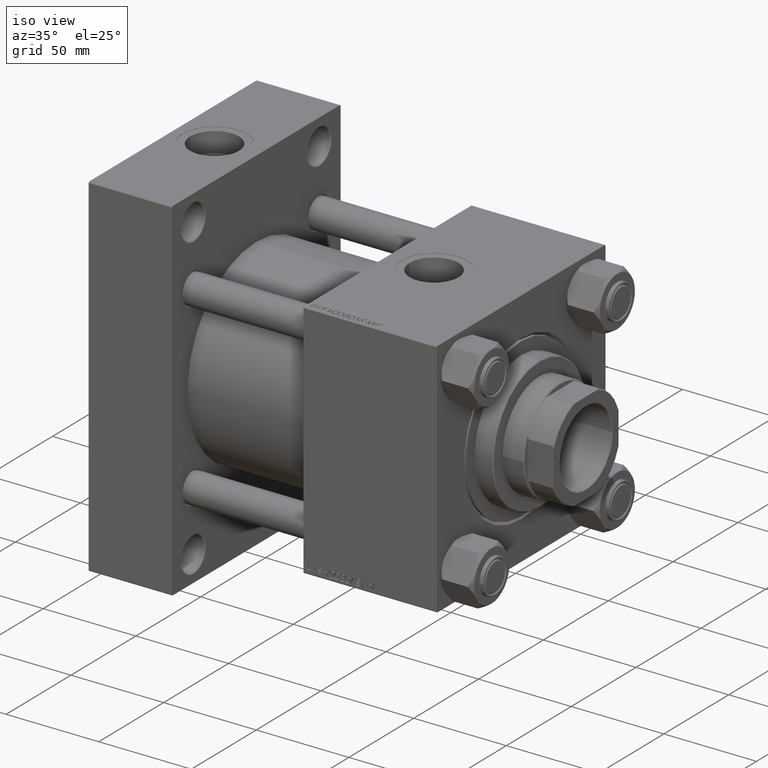
[diagram: clean part render]
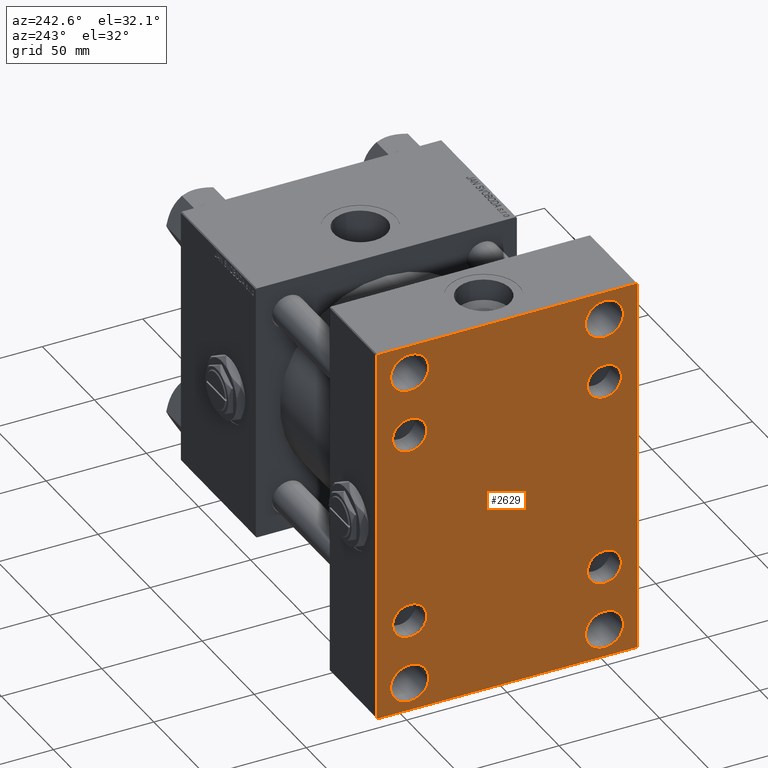
[diagram: tour spotlight — one face highlighted and labeled with its STEP entity id]
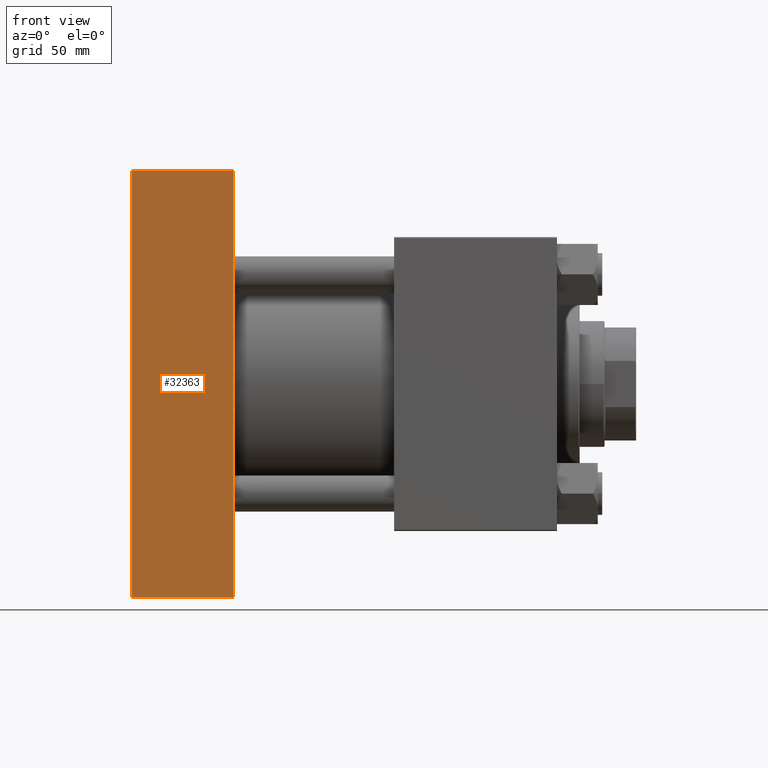
[diagram: tour spotlight — one face highlighted and labeled with its STEP entity id]
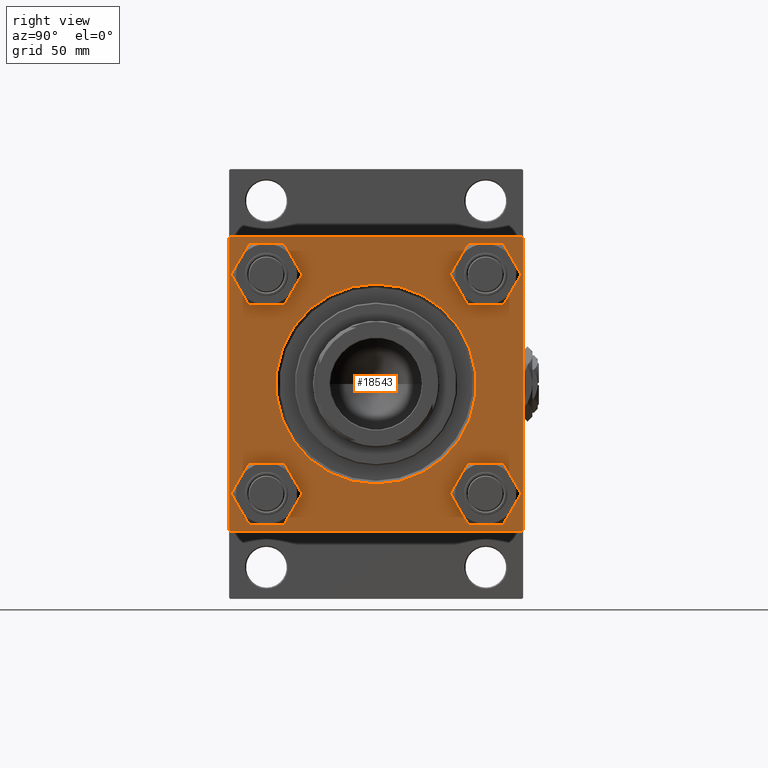
[diagram: tour spotlight — one face highlighted and labeled with its STEP entity id]
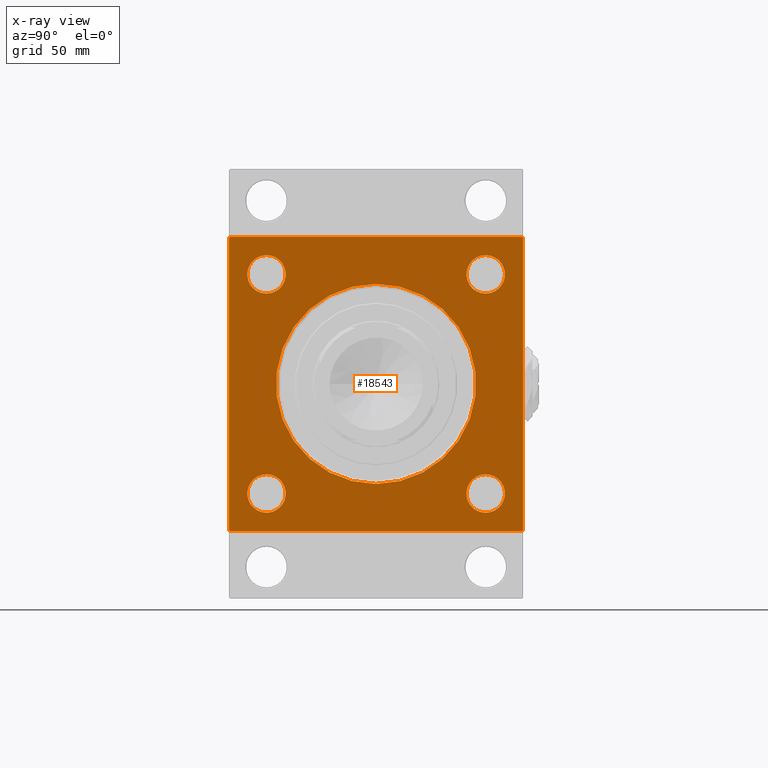
[diagram: x-ray of the same camera — body ghosted, this tour face saturated]
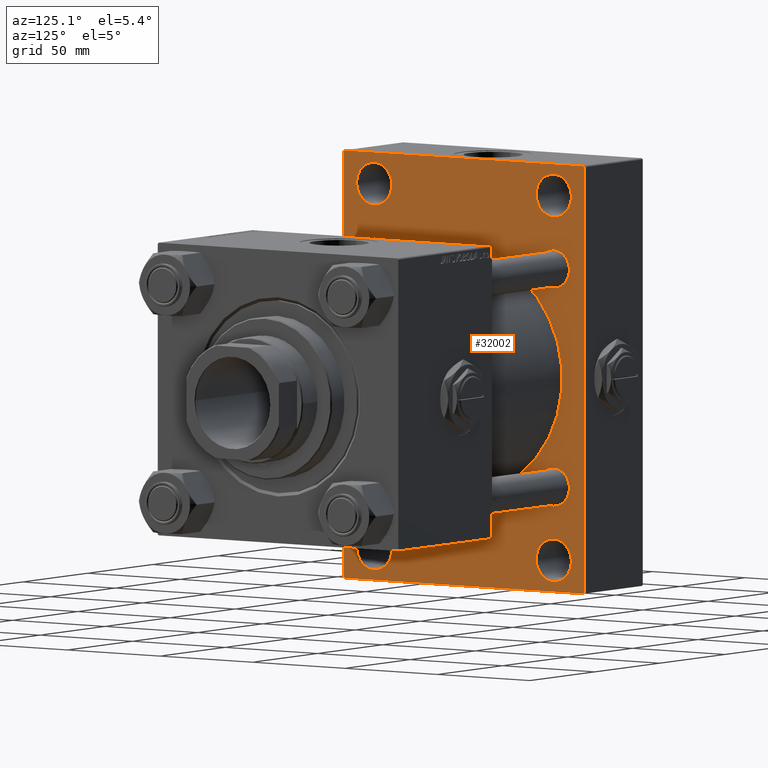
[diagram: tour spotlight — one face highlighted and labeled with its STEP entity id]
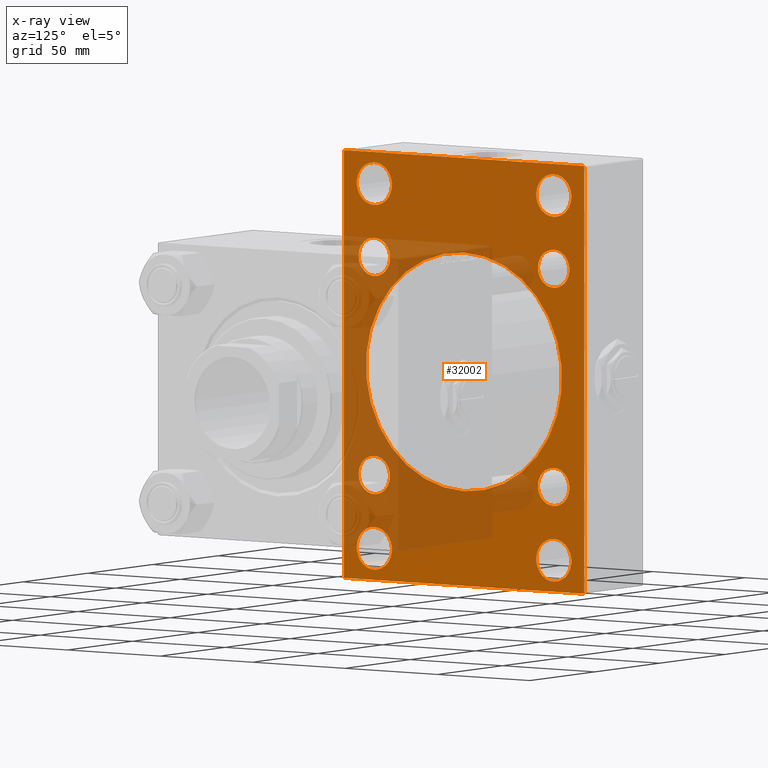
[diagram: x-ray of the same camera — body ghosted, this tour face saturated]
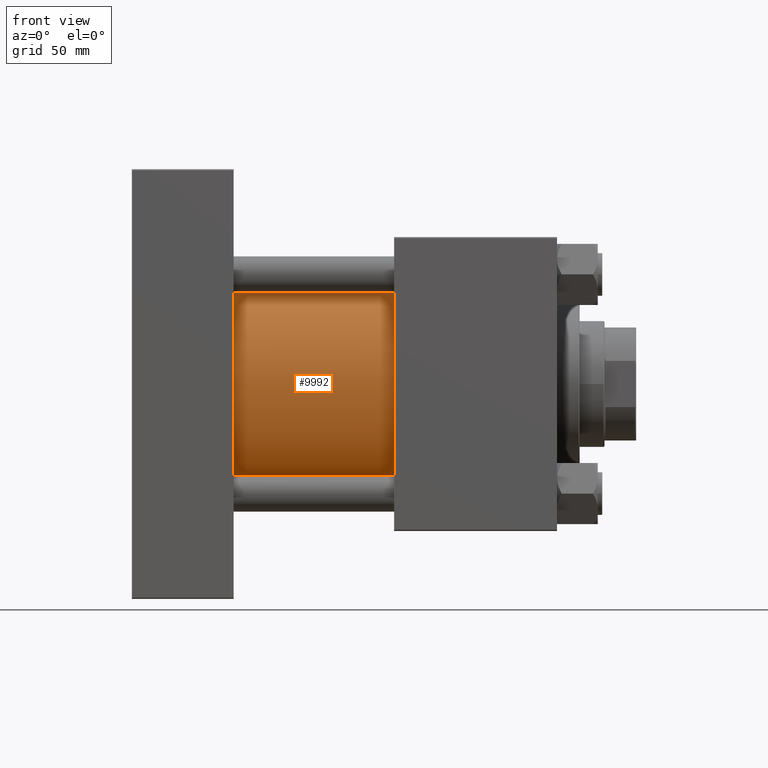
[diagram: tour spotlight — one face highlighted and labeled with its STEP entity id]
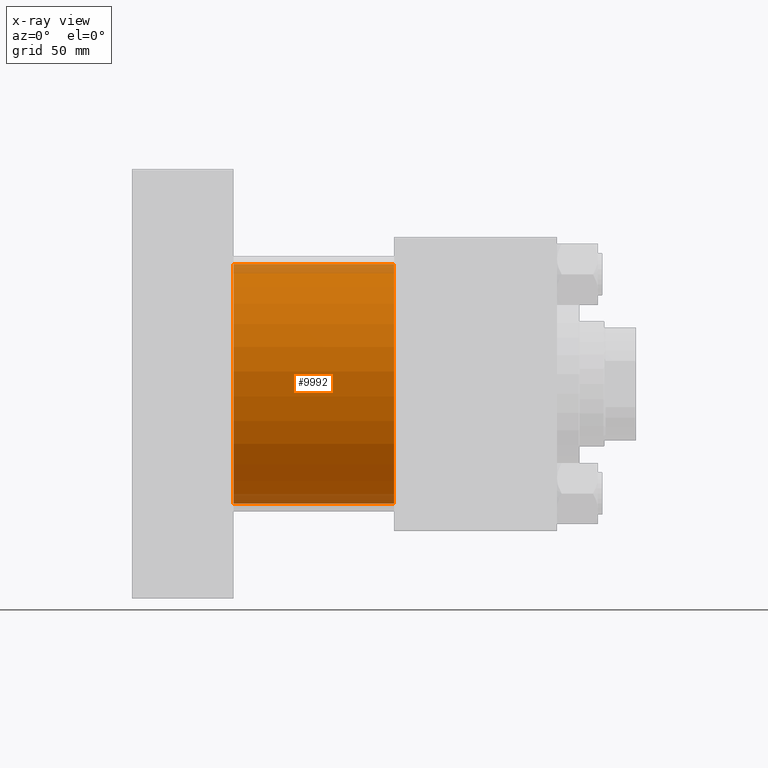
[diagram: x-ray of the same camera — body ghosted, this tour face saturated]
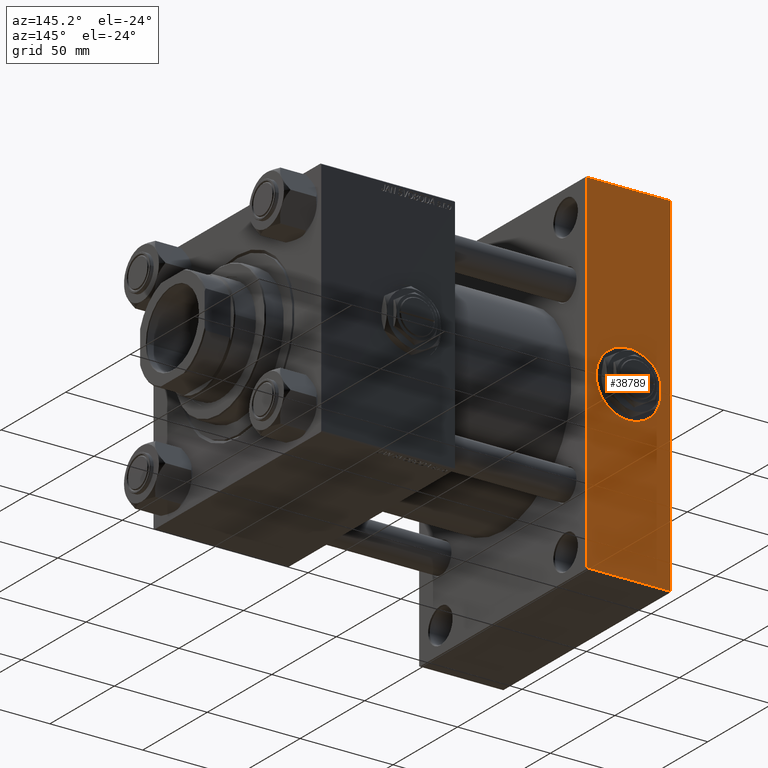
[diagram: tour spotlight — one face highlighted and labeled with its STEP entity id]
A machine part: a face-by-face anatomy tour. The part has 1284 B-rep faces; the first image is the clean iso view, then the 6 largest visible faces are spotlighted one at a time (largest first), each with its STEP entity span.

Face 1 — auxiliary view, entity #2629. In plain terms, the highlighted planar face has unit normal (-1, 0, 0).
Definition (entity closure, byte-faithful):
#290 = DIRECTION ( 'NONE',  ( -0.000000000000000000, 0.000000000000000000, 1.000000000000000000 ) ) ;
#465 = CARTESIAN_POINT ( 'NONE',  ( 0.000000000000000000, 48.50000000000000000, -90.50000000000000000 ) ) ;
#508 = CIRCLE ( 'NONE', #37045, 9.499999999999980460 ) ;
#536 = EDGE_CURVE ( 'NONE', #27283, #1907, #6273, .T. ) ;
#584 = VECTOR ( 'NONE', #4389, 1000.000000000000000 ) ;
#588 = VERTEX_POINT ( 'NONE', #16011 ) ;
#1064 = CARTESIAN_POINT ( 'NONE',  ( 0.000000000000000000, 48.45000000000000995, -48.45000000000001705 ) ) ;
#1124 = DIRECTION ( 'NONE',  ( 0.000000000000000000, 0.000000000000000000, 1.000000000000000000 ) ) ;
#1593 = ORIENTED_EDGE ( 'NONE', *, *, #38660, .T. ) ;
#1836 = DIRECTION ( 'NONE',  ( 1.000000000000000000, -0.000000000000000000, 0.000000000000000000 ) ) ;
#1907 = VERTEX_POINT ( 'NONE', #49943 ) ;
#2014 = CARTESIAN_POINT ( 'NONE',  ( 0.000000000000000000, -48.44999999999999574, 56.95000000000000995 ) ) ;
#2123 = LINE ( 'NONE', #19424, #45054 ) ;
#2415 = CIRCLE ( 'NONE', #10069, 8.499999999999980460 ) ;
#2560 = DIRECTION ( 'NONE',  ( 0.000000000000000000, 0.000000000000000000, 1.000000000000000000 ) ) ;
#2629 = ADVANCED_FACE ( 'NONE', ( #27987, #44716, #4310, #44455, #20003, #36741, #28764, #15750, #37001 ), #32480, .T. ) ;
#2735 = CARTESIAN_POINT ( 'NONE',  ( 0.000000000000000000, 48.45000000000000995, -39.95000000000003126 ) ) ;
#2915 = LINE ( 'NONE', #19151, #6895 ) ;
#3582 = CARTESIAN_POINT ( 'NONE',  ( 0.000000000000000000, -64.99999999999998579, 94.49999999999992895 ) ) ;
#3978 = DIRECTION ( 'NONE',  ( 0.000000000000000000, 0.000000000000000000, 1.000000000000000000 ) ) ;
#4094 = VERTEX_POINT ( 'NONE', #2014 ) ;
#4279 = CARTESIAN_POINT ( 'NONE',  ( 0.000000000000000000, -64.49999999999988631, -95.00000000000008527 ) ) ;
#4310 = FACE_BOUND ( 'NONE', #16805, .T. ) ;
#4389 = DIRECTION ( 'NONE',  ( 0.000000000000000000, -1.000000000000000000, -4.270088556250601699E-16 ) ) ;
#4495 = EDGE_LOOP ( 'NONE', ( #32531, #41458 ) ) ;
#4502 = ORIENTED_EDGE ( 'NONE', *, *, #13896, .T. ) ;
#4710 = CIRCLE ( 'NONE', #52217, 9.499999999999980460 ) ;
#5192 = VECTOR ( 'NONE', #29863, 1000.000000000000000 ) ;
#5302 = CARTESIAN_POINT ( 'NONE',  ( 0.000000000000000000, -48.44999999999999574, 39.95000000000004547 ) ) ;
#5479 = ORIENTED_EDGE ( 'NONE', *, *, #36921, .T. ) ;
#5865 = DIRECTION ( 'NONE',  ( 1.000000000000000000, -0.000000000000000000, 0.000000000000000000 ) ) ;
#6205 = EDGE_CURVE ( 'NONE', #39295, #13671, #26650, .T. ) ;
#6273 = CIRCLE ( 'NONE', #30894, 9.499999999999980460 ) ;
#6318 = DIRECTION ( 'NONE',  ( 0.000000000000000000, 0.000000000000000000, 1.000000000000000000 ) ) ;
#6448 = DIRECTION ( 'NONE',  ( 0.000000000000000000, -0.7071067811865867636, 0.7071067811865081598 ) ) ;
#6618 = CIRCLE ( 'NONE', #10868, 9.499999999999980460 ) ;
#6619 = EDGE_CURVE ( 'NONE', #34253, #4094, #11452, .T. ) ;
#6710 = EDGE_LOOP ( 'NONE', ( #38438, #21422 ) ) ;
#6807 = EDGE_CURVE ( 'NONE', #49903, #33501, #4710, .T. ) ;
#6895 = VECTOR ( 'NONE', #40413, 1000.000000000000000 ) ;
#7792 = VERTEX_POINT ( 'NONE', #43489 ) ;
#7829 = CARTESIAN_POINT ( 'NONE',  ( 0.000000000000000000, -48.50000000000000000, 90.49999999999998579 ) ) ;
#8247 = VERTEX_POINT ( 'NONE', #24285 ) ;
#8311 = DIRECTION ( 'NONE',  ( -1.000000000000000000, 0.000000000000000000, -0.000000000000000000 ) ) ;
#8328 = CIRCLE ( 'NONE', #18479, 9.499999999999980460 ) ;
#8344 = CARTESIAN_POINT ( 'NONE',  ( 0.000000000000000000, -48.50000000000000000, 71.50000000000002842 ) ) ;
#8615 = CARTESIAN_POINT ( 'NONE',  ( 0.000000000000000000, 79.74999999999818101, 79.75000000000261480 ) ) ;
#8654 = ORIENTED_EDGE ( 'NONE', *, *, #50433, .F. ) ;
#8942 = VERTEX_POINT ( 'NONE', #8344 ) ;
#9190 = CIRCLE ( 'NONE', #35531, 9.499999999999980460 ) ;
#9430 = CARTESIAN_POINT ( 'NONE',  ( 0.000000000000000000, -48.50000000000000000, -81.00000000000001421 ) ) ;
#9453 = ORIENTED_EDGE ( 'NONE', *, *, #51568, .T. ) ;
#9959 = AXIS2_PLACEMENT_3D ( 'NONE', #31016, #14806, #2560 ) ;
#10058 = EDGE_LOOP ( 'NONE', ( #12675, #14421 ) ) ;
#10069 = AXIS2_PLACEMENT_3D ( 'NONE', #45086, #12414, #33381 ) ;
#10570 = DIRECTION ( 'NONE',  ( 0.000000000000000000, 0.000000000000000000, 1.000000000000000000 ) ) ;
#10868 = AXIS2_PLACEMENT_3D ( 'NONE', #25610, #14422, #1124 ) ;
#10902 = CARTESIAN_POINT ( 'NONE',  ( 0.000000000000000000, 64.50000000000002842, -95.00000000000002842 ) ) ;
#11147 = VECTOR ( 'NONE', #30336, 1000.000000000000114 ) ;
#11206 = DIRECTION ( 'NONE',  ( 0.000000000000000000, 0.000000000000000000, 1.000000000000000000 ) ) ;
#11311 = EDGE_CURVE ( 'NONE', #34771, #42793, #32035, .T. ) ;
#11452 = CIRCLE ( 'NONE', #41143, 8.499999999999980460 ) ;
#11479 = DIRECTION ( 'NONE',  ( 1.000000000000000000, -0.000000000000000000, 0.000000000000000000 ) ) ;
#11635 = CARTESIAN_POINT ( 'NONE',  ( 0.000000000000000000, 48.50000000000000000, -81.00000000000001421 ) ) ;
#11676 = VECTOR ( 'NONE', #19969, 1000.000000000000000 ) ;
#11713 = AXIS2_PLACEMENT_3D ( 'NONE', #9430, #21900, #33602 ) ;
#12414 = DIRECTION ( 'NONE',  ( 1.000000000000000000, -0.000000000000000000, 0.000000000000000000 ) ) ;
#12675 = ORIENTED_EDGE ( 'NONE', *, *, #35729, .T. ) ;
#13454 = DIRECTION ( 'NONE',  ( 1.000000000000000000, -0.000000000000000000, 0.000000000000000000 ) ) ;
#13479 = AXIS2_PLACEMENT_3D ( 'NONE', #34022, #1836, #50227 ) ;
#13671 = VERTEX_POINT ( 'NONE', #24050 ) ;
#13896 = EDGE_CURVE ( 'NONE', #40431, #35336, #32798, .T. ) ;
#14019 = EDGE_CURVE ( 'NONE', #18629, #8942, #6618, .T. ) ;
#14086 = AXIS2_PLACEMENT_3D ( 'NONE', #16724, #49148, #3978 ) ;
#14088 = EDGE_LOOP ( 'NONE', ( #29467, #14447 ) ) ;
#14288 = EDGE_CURVE ( 'NONE', #588, #8247, #38082, .T. ) ;
#14421 = ORIENTED_EDGE ( 'NONE', *, *, #38075, .T. ) ;
#14422 = DIRECTION ( 'NONE',  ( 1.000000000000000000, -0.000000000000000000, 0.000000000000000000 ) ) ;
#14447 = ORIENTED_EDGE ( 'NONE', *, *, #6807, .T. ) ;
#14518 = EDGE_CURVE ( 'NONE', #8247, #588, #2415, .T. ) ;
#14806 = DIRECTION ( 'NONE',  ( 1.000000000000000000, -0.000000000000000000, 0.000000000000000000 ) ) ;
#15724 = AXIS2_PLACEMENT_3D ( 'NONE', #16016, #8311, #290 ) ;
#15750 = FACE_BOUND ( 'NONE', #4495, .T. ) ;
#15763 = DIRECTION ( 'NONE',  ( 0.000000000000000000, 0.000000000000000000, 1.000000000000000000 ) ) ;
#15991 = VECTOR ( 'NONE', #42602, 1000.000000000000000 ) ;
#16011 = CARTESIAN_POINT ( 'NONE',  ( 0.000000000000000000, -48.44999999999999574, -39.95000000000004547 ) ) ;
#16016 = CARTESIAN_POINT ( 'NONE',  ( 0.000000000000000000, 0.000000000000000000, 0.000000000000000000 ) ) ;
#16360 = LINE ( 'NONE', #24590, #584 ) ;
#16724 = CARTESIAN_POINT ( 'NONE',  ( 0.000000000000000000, -48.50000000000000000, 81.00000000000000000 ) ) ;
#16805 = EDGE_LOOP ( 'NONE', ( #1593, #20561 ) ) ;
#17305 = DIRECTION ( 'NONE',  ( 0.000000000000000000, 0.000000000000000000, 1.000000000000000000 ) ) ;
#17996 = CARTESIAN_POINT ( 'NONE',  ( 0.000000000000000000, 48.50000000000000000, 90.49999999999998579 ) ) ;
#18133 = CARTESIAN_POINT ( 'NONE',  ( 0.000000000000000000, 48.45000000000000995, -56.94999999999999574 ) ) ;
#18248 = ORIENTED_EDGE ( 'NONE', *, *, #14518, .T. ) ;
#18479 = AXIS2_PLACEMENT_3D ( 'NONE', #40954, #11479, #31931 ) ;
#18629 = VERTEX_POINT ( 'NONE', #7829 ) ;
#18670 = CARTESIAN_POINT ( 'NONE',  ( 0.000000000000000000, -79.74999999999639044, -79.75000000000524381 ) ) ;
#18740 = EDGE_CURVE ( 'NONE', #37239, #34990, #29600, .T. ) ;
#19151 = CARTESIAN_POINT ( 'NONE',  ( 0.000000000000000000, 65.00000000000002842, 94.99999999999997158 ) ) ;
#19175 = CARTESIAN_POINT ( 'NONE',  ( 0.000000000000000000, -48.44999999999999574, 48.45000000000003126 ) ) ;
#19424 = CARTESIAN_POINT ( 'NONE',  ( 0.000000000000000000, -64.99999999999998579, 94.99999999999995737 ) ) ;
#19645 = EDGE_CURVE ( 'NONE', #34990, #37239, #42663, .T. ) ;
#19945 = VECTOR ( 'NONE', #6448, 1000.000000000000000 ) ;
#19969 = DIRECTION ( 'NONE',  ( -0.000000000000000000, 0.7071067811865573427, 0.7071067811865378028 ) ) ;
#20003 = FACE_BOUND ( 'NONE', #29167, .T. ) ;
#20561 = ORIENTED_EDGE ( 'NONE', *, *, #536, .T. ) ;
#21422 = ORIENTED_EDGE ( 'NONE', *, *, #29645, .T. ) ;
#21900 = DIRECTION ( 'NONE',  ( 1.000000000000000000, -0.000000000000000000, 0.000000000000000000 ) ) ;
#22154 = VERTEX_POINT ( 'NONE', #40089 ) ;
#22356 = LINE ( 'NONE', #33802, #11147 ) ;
#23745 = CARTESIAN_POINT ( 'NONE',  ( 0.000000000000000000, 48.45000000000000995, 48.45000000000001705 ) ) ;
#23820 = DIRECTION ( 'NONE',  ( 1.000000000000000000, -0.000000000000000000, 0.000000000000000000 ) ) ;
#24050 = CARTESIAN_POINT ( 'NONE',  ( 0.000000000000000000, -64.99999999999998579, -94.50000000000004263 ) ) ;
#24114 = ORIENTED_EDGE ( 'NONE', *, *, #45263, .T. ) ;
#24285 = CARTESIAN_POINT ( 'NONE',  ( 0.000000000000000000, -48.44999999999999574, -56.95000000000000995 ) ) ;
#24332 = CIRCLE ( 'NONE', #34492, 8.499999999999980460 ) ;
#24590 = CARTESIAN_POINT ( 'NONE',  ( 0.000000000000000000, 65.00000000000002842, -95.00000000000002842 ) ) ;
#24829 = AXIS2_PLACEMENT_3D ( 'NONE', #1064, #5865, #17305 ) ;
#25610 = CARTESIAN_POINT ( 'NONE',  ( 0.000000000000000000, -48.50000000000000000, 81.00000000000000000 ) ) ;
#26094 = EDGE_LOOP ( 'NONE', ( #36806, #51081 ) ) ;
#26650 = LINE ( 'NONE', #18670, #19945 ) ;
#26784 = DIRECTION ( 'NONE',  ( 1.000000000000000000, -0.000000000000000000, 0.000000000000000000 ) ) ;
#26927 = LINE ( 'NONE', #30114, #5192 ) ;
#27118 = ORIENTED_EDGE ( 'NONE', *, *, #6205, .T. ) ;
#27283 = VERTEX_POINT ( 'NONE', #27898 ) ;
#27898 = CARTESIAN_POINT ( 'NONE',  ( 0.000000000000000000, -48.50000000000000000, -90.50000000000000000 ) ) ;
#27987 = FACE_BOUND ( 'NONE', #10058, .T. ) ;
#28289 = DIRECTION ( 'NONE',  ( 1.000000000000000000, -0.000000000000000000, 0.000000000000000000 ) ) ;
#28293 = ORIENTED_EDGE ( 'NONE', *, *, #37298, .T. ) ;
#28364 = ORIENTED_EDGE ( 'NONE', *, *, #6619, .T. ) ;
#28382 = CARTESIAN_POINT ( 'NONE',  ( 0.000000000000000000, 48.45000000000000995, 56.94999999999999574 ) ) ;
#28764 = FACE_BOUND ( 'NONE', #26094, .T. ) ;
#29167 = EDGE_LOOP ( 'NONE', ( #38042, #28364 ) ) ;
#29467 = ORIENTED_EDGE ( 'NONE', *, *, #39993, .T. ) ;
#29532 = CARTESIAN_POINT ( 'NONE',  ( 0.000000000000000000, -48.44999999999999574, -48.45000000000003126 ) ) ;
#29600 = CIRCLE ( 'NONE', #13479, 8.499999999999980460 ) ;
#29645 = EDGE_CURVE ( 'NONE', #8942, #18629, #31880, .T. ) ;
#29662 = DIRECTION ( 'NONE',  ( 0.000000000000000000, 0.000000000000000000, 1.000000000000000000 ) ) ;
#29863 = DIRECTION ( 'NONE',  ( 0.000000000000000000, 0.000000000000000000, -1.000000000000000000 ) ) ;
#30114 = CARTESIAN_POINT ( 'NONE',  ( 0.000000000000000000, 65.00000000000002842, 94.99999999999997158 ) ) ;
#30336 = DIRECTION ( 'NONE',  ( -0.000000000000000000, -0.7071067811865474617, -0.7071067811865474617 ) ) ;
#30778 = VERTEX_POINT ( 'NONE', #10902 ) ;
#30894 = AXIS2_PLACEMENT_3D ( 'NONE', #49856, #13454, #29662 ) ;
#31016 = CARTESIAN_POINT ( 'NONE',  ( 0.000000000000000000, 48.45000000000000995, 48.45000000000001705 ) ) ;
#31669 = ORIENTED_EDGE ( 'NONE', *, *, #14288, .T. ) ;
#31880 = CIRCLE ( 'NONE', #14086, 9.499999999999980460 ) ;
#31931 = DIRECTION ( 'NONE',  ( 0.000000000000000000, 0.000000000000000000, 1.000000000000000000 ) ) ;
#32035 = CIRCLE ( 'NONE', #9959, 8.499999999999980460 ) ;
#32445 = LINE ( 'NONE', #51863, #11676 ) ;
#32480 = PLANE ( 'NONE',  #15724 ) ;
#32531 = ORIENTED_EDGE ( 'NONE', *, *, #43244, .T. ) ;
#32662 = DIRECTION ( 'NONE',  ( 1.000000000000000000, -0.000000000000000000, 0.000000000000000000 ) ) ;
#32798 = LINE ( 'NONE', #8615, #15991 ) ;
#32977 = AXIS2_PLACEMENT_3D ( 'NONE', #29532, #45739, #6318 ) ;
#33381 = DIRECTION ( 'NONE',  ( 0.000000000000000000, 0.000000000000000000, 1.000000000000000000 ) ) ;
#33444 = DIRECTION ( 'NONE',  ( 0.000000000000000000, 0.000000000000000000, 1.000000000000000000 ) ) ;
#33495 = CARTESIAN_POINT ( 'NONE',  ( 0.000000000000000000, 48.50000000000000000, -81.00000000000001421 ) ) ;
#33501 = VERTEX_POINT ( 'NONE', #40347 ) ;
#33544 = CARTESIAN_POINT ( 'NONE',  ( 0.000000000000000000, 65.00000000000002842, 94.49999999999997158 ) ) ;
#33602 = DIRECTION ( 'NONE',  ( 0.000000000000000000, 0.000000000000000000, 1.000000000000000000 ) ) ;
#33802 = CARTESIAN_POINT ( 'NONE',  ( 0.000000000000000000, 79.75000000000002842, -79.75000000000002842 ) ) ;
#34022 = CARTESIAN_POINT ( 'NONE',  ( 0.000000000000000000, 48.45000000000000995, -48.45000000000001705 ) ) ;
#34239 = ORIENTED_EDGE ( 'NONE', *, *, #50530, .F. ) ;
#34253 = VERTEX_POINT ( 'NONE', #5302 ) ;
#34492 = AXIS2_PLACEMENT_3D ( 'NONE', #19175, #35397, #11206 ) ;
#34771 = VERTEX_POINT ( 'NONE', #48777 ) ;
#34990 = VERTEX_POINT ( 'NONE', #2735 ) ;
#35336 = VERTEX_POINT ( 'NONE', #33544 ) ;
#35397 = DIRECTION ( 'NONE',  ( 1.000000000000000000, -0.000000000000000000, 0.000000000000000000 ) ) ;
#35489 = EDGE_CURVE ( 'NONE', #4094, #34253, #24332, .T. ) ;
#35531 = AXIS2_PLACEMENT_3D ( 'NONE', #33495, #28289, #48732 ) ;
#35729 = EDGE_CURVE ( 'NONE', #47627, #7792, #508, .T. ) ;
#36741 = FACE_BOUND ( 'NONE', #51102, .T. ) ;
#36806 = ORIENTED_EDGE ( 'NONE', *, *, #19645, .T. ) ;
#36921 = EDGE_CURVE ( 'NONE', #30778, #39295, #16360, .T. ) ;
#37001 = FACE_OUTER_BOUND ( 'NONE', #43376, .T. ) ;
#37045 = AXIS2_PLACEMENT_3D ( 'NONE', #48786, #23820, #44280 ) ;
#37239 = VERTEX_POINT ( 'NONE', #18133 ) ;
#37298 = EDGE_CURVE ( 'NONE', #50167, #22154, #32445, .T. ) ;
#38042 = ORIENTED_EDGE ( 'NONE', *, *, #35489, .T. ) ;
#38075 = EDGE_CURVE ( 'NONE', #7792, #47627, #8328, .T. ) ;
#38082 = CIRCLE ( 'NONE', #32977, 8.499999999999980460 ) ;
#38438 = ORIENTED_EDGE ( 'NONE', *, *, #14019, .T. ) ;
#38660 = EDGE_CURVE ( 'NONE', #1907, #27283, #49061, .T. ) ;
#39295 = VERTEX_POINT ( 'NONE', #4279 ) ;
#39993 = EDGE_CURVE ( 'NONE', #33501, #49903, #9190, .T. ) ;
#40089 = CARTESIAN_POINT ( 'NONE',  ( 0.000000000000000000, -64.49999999999994316, 94.99999999999995737 ) ) ;
#40347 = CARTESIAN_POINT ( 'NONE',  ( 0.000000000000000000, 48.50000000000000000, -71.50000000000004263 ) ) ;
#40413 = DIRECTION ( 'NONE',  ( 0.000000000000000000, -1.000000000000000000, -1.067522139062650425E-16 ) ) ;
#40431 = VERTEX_POINT ( 'NONE', #42988 ) ;
#40760 = CIRCLE ( 'NONE', #49249, 8.499999999999980460 ) ;
#40954 = CARTESIAN_POINT ( 'NONE',  ( 0.000000000000000000, 48.50000000000000000, 81.00000000000000000 ) ) ;
#41143 = AXIS2_PLACEMENT_3D ( 'NONE', #49400, #32662, #33444 ) ;
#41458 = ORIENTED_EDGE ( 'NONE', *, *, #11311, .T. ) ;
#42602 = DIRECTION ( 'NONE',  ( 0.000000000000000000, 0.7071067811865672237, -0.7071067811865279218 ) ) ;
#42663 = CIRCLE ( 'NONE', #24829, 8.499999999999980460 ) ;
#42793 = VERTEX_POINT ( 'NONE', #28382 ) ;
#42988 = CARTESIAN_POINT ( 'NONE',  ( 0.000000000000000000, 64.50000000000000000, 94.99999999999997158 ) ) ;
#43244 = EDGE_CURVE ( 'NONE', #42793, #34771, #40760, .T. ) ;
#43376 = EDGE_LOOP ( 'NONE', ( #24114, #9453, #5479, #27118, #8654, #28293, #34239, #4502 ) ) ;
#43489 = CARTESIAN_POINT ( 'NONE',  ( 0.000000000000000000, 48.50000000000000000, 71.50000000000002842 ) ) ;
#43672 = DIRECTION ( 'NONE',  ( 1.000000000000000000, -0.000000000000000000, 0.000000000000000000 ) ) ;
#44280 = DIRECTION ( 'NONE',  ( 0.000000000000000000, 0.000000000000000000, 1.000000000000000000 ) ) ;
#44356 = CARTESIAN_POINT ( 'NONE',  ( 0.000000000000000000, 65.00000000000002842, -94.50000000000002842 ) ) ;
#44455 = FACE_BOUND ( 'NONE', #14088, .T. ) ;
#44716 = FACE_BOUND ( 'NONE', #6710, .T. ) ;
#45054 = VECTOR ( 'NONE', #47323, 1000.000000000000000 ) ;
#45086 = CARTESIAN_POINT ( 'NONE',  ( 0.000000000000000000, -48.44999999999999574, -48.45000000000003126 ) ) ;
#45263 = EDGE_CURVE ( 'NONE', #35336, #48435, #26927, .T. ) ;
#45739 = DIRECTION ( 'NONE',  ( 1.000000000000000000, -0.000000000000000000, 0.000000000000000000 ) ) ;
#47323 = DIRECTION ( 'NONE',  ( 0.000000000000000000, 0.000000000000000000, -1.000000000000000000 ) ) ;
#47627 = VERTEX_POINT ( 'NONE', #17996 ) ;
#48435 = VERTEX_POINT ( 'NONE', #44356 ) ;
#48732 = DIRECTION ( 'NONE',  ( 0.000000000000000000, 0.000000000000000000, 1.000000000000000000 ) ) ;
#48777 = CARTESIAN_POINT ( 'NONE',  ( 0.000000000000000000, 48.45000000000000995, 39.95000000000003126 ) ) ;
#48786 = CARTESIAN_POINT ( 'NONE',  ( 0.000000000000000000, 48.50000000000000000, 81.00000000000000000 ) ) ;
#49061 = CIRCLE ( 'NONE', #11713, 9.499999999999980460 ) ;
#49148 = DIRECTION ( 'NONE',  ( 1.000000000000000000, -0.000000000000000000, 0.000000000000000000 ) ) ;
#49249 = AXIS2_PLACEMENT_3D ( 'NONE', #23745, #43672, #15763 ) ;
#49400 = CARTESIAN_POINT ( 'NONE',  ( 0.000000000000000000, -48.44999999999999574, 48.45000000000003126 ) ) ;
#49856 = CARTESIAN_POINT ( 'NONE',  ( 0.000000000000000000, -48.50000000000000000, -81.00000000000001421 ) ) ;
#49903 = VERTEX_POINT ( 'NONE', #465 ) ;
#49943 = CARTESIAN_POINT ( 'NONE',  ( 0.000000000000000000, -48.50000000000000000, -71.50000000000004263 ) ) ;
#50167 = VERTEX_POINT ( 'NONE', #3582 ) ;
#50227 = DIRECTION ( 'NONE',  ( 0.000000000000000000, 0.000000000000000000, 1.000000000000000000 ) ) ;
#50433 = EDGE_CURVE ( 'NONE', #50167, #13671, #2123, .T. ) ;
#50530 = EDGE_CURVE ( 'NONE', #40431, #22154, #2915, .T. ) ;
#51081 = ORIENTED_EDGE ( 'NONE', *, *, #18740, .T. ) ;
#51102 = EDGE_LOOP ( 'NONE', ( #31669, #18248 ) ) ;
#51568 = EDGE_CURVE ( 'NONE', #48435, #30778, #22356, .T. ) ;
#51863 = CARTESIAN_POINT ( 'NONE',  ( -0.000000000000000000, -79.74999999999906208, 79.75000000000126477 ) ) ;
#52217 = AXIS2_PLACEMENT_3D ( 'NONE', #11635, #26784, #10570 ) ;

Face 2 — front view, entity #32363. In plain terms, the highlighted planar face has unit normal (0, 1, 0).
Definition (entity closure, byte-faithful):
#2123 = LINE ( 'NONE', #19424, #45054 ) ;
#2251 = DIRECTION ( 'NONE',  ( 0.000000000000000000, -0.000000000000000000, 1.000000000000000000 ) ) ;
#2562 = CARTESIAN_POINT ( 'NONE',  ( 45.00000000000000000, -64.99999999999998579, 94.49999999999992895 ) ) ;
#2713 = CARTESIAN_POINT ( 'NONE',  ( 45.00000000000000000, -64.99999999999998579, -94.50000000000004263 ) ) ;
#3582 = CARTESIAN_POINT ( 'NONE',  ( 0.000000000000000000, -64.99999999999998579, 94.49999999999992895 ) ) ;
#4390 = ORIENTED_EDGE ( 'NONE', *, *, #39857, .T. ) ;
#6259 = CARTESIAN_POINT ( 'NONE',  ( 45.00000000000000000, -64.99999999999998579, 94.99999999999995737 ) ) ;
#10358 = EDGE_LOOP ( 'NONE', ( #33204, #35227, #51743, #4390 ) ) ;
#12068 = VECTOR ( 'NONE', #39406, 1000.000000000000000 ) ;
#12138 = CARTESIAN_POINT ( 'NONE',  ( 45.00000000000000000, -64.99999999999998579, 94.49999999999992895 ) ) ;
#13671 = VERTEX_POINT ( 'NONE', #24050 ) ;
#16351 = VERTEX_POINT ( 'NONE', #2562 ) ;
#18232 = FACE_OUTER_BOUND ( 'NONE', #10358, .T. ) ;
#19424 = CARTESIAN_POINT ( 'NONE',  ( 0.000000000000000000, -64.99999999999998579, 94.99999999999995737 ) ) ;
#20240 = EDGE_CURVE ( 'NONE', #13671, #31816, #46853, .T. ) ;
#20948 = AXIS2_PLACEMENT_3D ( 'NONE', #6259, #22470, #2251 ) ;
#22470 = DIRECTION ( 'NONE',  ( -0.000000000000000000, 1.000000000000000000, 0.000000000000000000 ) ) ;
#24050 = CARTESIAN_POINT ( 'NONE',  ( 0.000000000000000000, -64.99999999999998579, -94.50000000000004263 ) ) ;
#24274 = DIRECTION ( 'NONE',  ( 0.000000000000000000, 0.000000000000000000, -1.000000000000000000 ) ) ;
#26462 = PLANE ( 'NONE',  #20948 ) ;
#30640 = CARTESIAN_POINT ( 'NONE',  ( 45.00000000000000000, -64.99999999999998579, -94.50000000000004263 ) ) ;
#31816 = VERTEX_POINT ( 'NONE', #30640 ) ;
#32363 = ADVANCED_FACE ( 'NONE', ( #18232 ), #26462, .F. ) ;
#32502 = CARTESIAN_POINT ( 'NONE',  ( 45.00000000000000000, -64.99999999999998579, 94.99999999999995737 ) ) ;
#33204 = ORIENTED_EDGE ( 'NONE', *, *, #50433, .T. ) ;
#33361 = DIRECTION ( 'NONE',  ( -1.000000000000000000, 0.000000000000000000, 0.000000000000000000 ) ) ;
#35227 = ORIENTED_EDGE ( 'NONE', *, *, #20240, .T. ) ;
#37096 = LINE ( 'NONE', #12138, #43144 ) ;
#39406 = DIRECTION ( 'NONE',  ( 1.000000000000000000, 0.000000000000000000, 0.000000000000000000 ) ) ;
#39703 = LINE ( 'NONE', #32502, #45090 ) ;
#39857 = EDGE_CURVE ( 'NONE', #16351, #50167, #37096, .T. ) ;
#43144 = VECTOR ( 'NONE', #33361, 1000.000000000000000 ) ;
#45054 = VECTOR ( 'NONE', #47323, 1000.000000000000000 ) ;
#45090 = VECTOR ( 'NONE', #24274, 1000.000000000000000 ) ;
#46853 = LINE ( 'NONE', #2713, #12068 ) ;
#47323 = DIRECTION ( 'NONE',  ( 0.000000000000000000, 0.000000000000000000, -1.000000000000000000 ) ) ;
#50167 = VERTEX_POINT ( 'NONE', #3582 ) ;
#50433 = EDGE_CURVE ( 'NONE', #50167, #13671, #2123, .T. ) ;
#51743 = ORIENTED_EDGE ( 'NONE', *, *, #52396, .F. ) ;
#52396 = EDGE_CURVE ( 'NONE', #16351, #31816, #39703, .T. ) ;

Face 3 — right view, entity #18543. An x-ray twin of the same camera follows (body ghosted, this face saturated) — the face is partly hidden behind the body. In plain terms, the highlighted planar face has unit normal (-1, 0, 0).
Definition (entity closure, byte-faithful):
#14 = VERTEX_POINT ( 'NONE', #40756 ) ;
#49 = CIRCLE ( 'NONE', #29786, 8.500000000000035527 ) ;
#174 = EDGE_LOOP ( 'NONE', ( #48067, #22738, #49177, #32305, #8265, #51768, #24210, #43971 ) ) ;
#601 = DIRECTION ( 'NONE',  ( 0.000000000000000000, 0.000000000000000000, 1.000000000000000000 ) ) ;
#819 = CARTESIAN_POINT ( 'NONE',  ( 188.0000000000000000, 48.45000000000000995, 48.45000000000001705 ) ) ;
#1350 = DIRECTION ( 'NONE',  ( 0.000000000000000000, 0.000000000000000000, 1.000000000000000000 ) ) ;
#2408 = CIRCLE ( 'NONE', #38930, 8.500000000000035527 ) ;
#3073 = DIRECTION ( 'NONE',  ( -1.000000000000000000, 0.000000000000000000, -0.000000000000000000 ) ) ;
#4149 = DIRECTION ( 'NONE',  ( 0.000000000000000000, 0.000000000000000000, 1.000000000000000000 ) ) ;
#4217 = EDGE_CURVE ( 'NONE', #16369, #15003, #25092, .T. ) ;
#4283 = CARTESIAN_POINT ( 'NONE',  ( 188.0000000000000000, 0.000000000000000000, 0.000000000000000000 ) ) ;
#4875 = CARTESIAN_POINT ( 'NONE',  ( 188.0000000000000000, 48.45000000000000995, -48.45000000000001705 ) ) ;
#5447 = VERTEX_POINT ( 'NONE', #45205 ) ;
#6052 = CARTESIAN_POINT ( 'NONE',  ( 188.0000000000000000, -48.44999999999999574, 56.95000000000005969 ) ) ;
#6146 = EDGE_CURVE ( 'NONE', #49079, #40360, #47943, .T. ) ;
#6369 = CARTESIAN_POINT ( 'NONE',  ( 188.0000000000000000, 64.50000000000005684, 65.00000000000001421 ) ) ;
#6600 = ORIENTED_EDGE ( 'NONE', *, *, #40825, .T. ) ;
#7569 = CARTESIAN_POINT ( 'NONE',  ( 188.0000000000000000, 5.419062086227046872E-15, 44.25000000000006395 ) ) ;
#7639 = AXIS2_PLACEMENT_3D ( 'NONE', #10675, #13884, #18912 ) ;
#8265 = ORIENTED_EDGE ( 'NONE', *, *, #21127, .F. ) ;
#8307 = CARTESIAN_POINT ( 'NONE',  ( 188.0000000000000000, -48.44999999999999574, -48.45000000000003126 ) ) ;
#8492 = ORIENTED_EDGE ( 'NONE', *, *, #16466, .T. ) ;
#8983 = CARTESIAN_POINT ( 'NONE',  ( 188.0000000000000000, 48.45000000000000995, 56.95000000000005258 ) ) ;
#9076 = EDGE_CURVE ( 'NONE', #36940, #21507, #18658, .T. ) ;
#9302 = EDGE_CURVE ( 'NONE', #27863, #20889, #52296, .T. ) ;
#9757 = EDGE_CURVE ( 'NONE', #40360, #49079, #22621, .T. ) ;
#10364 = CARTESIAN_POINT ( 'NONE',  ( 188.0000000000000000, 65.00000000000002842, -64.99999999999998579 ) ) ;
#10675 = CARTESIAN_POINT ( 'NONE',  ( 188.0000000000000000, 48.45000000000000995, 48.45000000000001705 ) ) ;
#10757 = CARTESIAN_POINT ( 'NONE',  ( 188.0000000000000000, 48.45000000000000995, -39.94999999999998153 ) ) ;
#11021 = CIRCLE ( 'NONE', #7639, 8.500000000000035527 ) ;
#11047 = LINE ( 'NONE', #28313, #17547 ) ;
#11051 = EDGE_CURVE ( 'NONE', #16514, #14, #38541, .T. ) ;
#12142 = DIRECTION ( 'NONE',  ( -1.000000000000000000, 0.000000000000000000, -0.000000000000000000 ) ) ;
#12192 = DIRECTION ( 'NONE',  ( -0.000000000000000000, -0.7071067811865376918, -0.7071067811865574537 ) ) ;
#12468 = VECTOR ( 'NONE', #23328, 1000.000000000000000 ) ;
#12824 = DIRECTION ( 'NONE',  ( -1.000000000000000000, 0.000000000000000000, -0.000000000000000000 ) ) ;
#12877 = EDGE_LOOP ( 'NONE', ( #19367, #19046 ) ) ;
#13141 = AXIS2_PLACEMENT_3D ( 'NONE', #4875, #29069, #601 ) ;
#13686 = DIRECTION ( 'NONE',  ( -1.000000000000000000, 0.000000000000000000, -0.000000000000000000 ) ) ;
#13759 = VECTOR ( 'NONE', #25688, 1000.000000000000000 ) ;
#13884 = DIRECTION ( 'NONE',  ( -1.000000000000000000, 0.000000000000000000, -0.000000000000000000 ) ) ;
#14089 = LINE ( 'NONE', #6369, #33003 ) ;
#14597 = VERTEX_POINT ( 'NONE', #47182 ) ;
#14783 = DIRECTION ( 'NONE',  ( 0.000000000000000000, 0.000000000000000000, 1.000000000000000000 ) ) ;
#15003 = VERTEX_POINT ( 'NONE', #17045 ) ;
#15006 = DIRECTION ( 'NONE',  ( -1.000000000000000000, 0.000000000000000000, -0.000000000000000000 ) ) ;
#15024 = AXIS2_PLACEMENT_3D ( 'NONE', #51191, #3073, #14783 ) ;
#15052 = CARTESIAN_POINT ( 'NONE',  ( 188.0000000000000000, -48.44999999999999574, -56.95000000000005969 ) ) ;
#15614 = EDGE_LOOP ( 'NONE', ( #17888, #43359 ) ) ;
#15910 = VECTOR ( 'NONE', #32246, 1000.000000000000000 ) ;
#15967 = CARTESIAN_POINT ( 'NONE',  ( 188.0000000000000000, -64.99999999999998579, -64.49999999999997158 ) ) ;
#16041 = LINE ( 'NONE', #48211, #15910 ) ;
#16369 = VERTEX_POINT ( 'NONE', #6052 ) ;
#16466 = EDGE_CURVE ( 'NONE', #24071, #5447, #39862, .T. ) ;
#16514 = VERTEX_POINT ( 'NONE', #34590 ) ;
#16924 = CARTESIAN_POINT ( 'NONE',  ( 188.0000000000000000, 65.00000000000002842, 65.00000000000001421 ) ) ;
#17045 = CARTESIAN_POINT ( 'NONE',  ( 188.0000000000000000, -48.44999999999999574, 39.94999999999999574 ) ) ;
#17311 = VECTOR ( 'NONE', #12192, 999.9999999999998863 ) ;
#17547 = VECTOR ( 'NONE', #52484, 1000.000000000000114 ) ;
#17656 = EDGE_CURVE ( 'NONE', #5447, #24071, #11021, .T. ) ;
#17888 = ORIENTED_EDGE ( 'NONE', *, *, #19421, .T. ) ;
#18543 = ADVANCED_FACE ( 'NONE', ( #51139, #43964, #26965, #39186, #51671, #22707 ), #39987, .F. ) ;
#18658 = LINE ( 'NONE', #43114, #22584 ) ;
#18912 = DIRECTION ( 'NONE',  ( 0.000000000000000000, 0.000000000000000000, 1.000000000000000000 ) ) ;
#19046 = ORIENTED_EDGE ( 'NONE', *, *, #6146, .T. ) ;
#19367 = ORIENTED_EDGE ( 'NONE', *, *, #9757, .T. ) ;
#19421 = EDGE_CURVE ( 'NONE', #20889, #27863, #25709, .T. ) ;
#19533 = DIRECTION ( 'NONE',  ( 0.000000000000000000, 0.000000000000000000, 1.000000000000000000 ) ) ;
#20417 = CARTESIAN_POINT ( 'NONE',  ( 188.0000000000000000, -64.99999999999998579, 64.49999999999997158 ) ) ;
#20889 = VERTEX_POINT ( 'NONE', #31045 ) ;
#20994 = VECTOR ( 'NONE', #43056, 1000.000000000000000 ) ;
#21038 = DIRECTION ( 'NONE',  ( -1.000000000000000000, 0.000000000000000000, -0.000000000000000000 ) ) ;
#21127 = EDGE_CURVE ( 'NONE', #47697, #28039, #37134, .T. ) ;
#21507 = VERTEX_POINT ( 'NONE', #15967 ) ;
#21510 = ORIENTED_EDGE ( 'NONE', *, *, #17656, .T. ) ;
#22584 = VECTOR ( 'NONE', #39654, 1000.000000000000000 ) ;
#22621 = CIRCLE ( 'NONE', #26879, 8.500000000000035527 ) ;
#22707 = FACE_OUTER_BOUND ( 'NONE', #174, .T. ) ;
#22738 = ORIENTED_EDGE ( 'NONE', *, *, #37061, .T. ) ;
#23232 = DIRECTION ( 'NONE',  ( -0.000000000000000000, 0.000000000000000000, 1.000000000000000000 ) ) ;
#23328 = DIRECTION ( 'NONE',  ( 0.000000000000000000, -1.000000000000000000, -1.067522139062650425E-16 ) ) ;
#23744 = CARTESIAN_POINT ( 'NONE',  ( 188.0000000000000000, 0.000000000000000000, 0.000000000000000000 ) ) ;
#24071 = VERTEX_POINT ( 'NONE', #8983 ) ;
#24210 = ORIENTED_EDGE ( 'NONE', *, *, #32110, .T. ) ;
#25092 = CIRCLE ( 'NONE', #50551, 8.500000000000035527 ) ;
#25688 = DIRECTION ( 'NONE',  ( 0.000000000000000000, 0.000000000000000000, -1.000000000000000000 ) ) ;
#25709 = CIRCLE ( 'NONE', #33325, 44.25000000000006395 ) ;
#26178 = EDGE_CURVE ( 'NONE', #14597, #36940, #28661, .T. ) ;
#26879 = AXIS2_PLACEMENT_3D ( 'NONE', #31537, #12142, #4149 ) ;
#26965 = FACE_BOUND ( 'NONE', #35264, .T. ) ;
#27488 = DIRECTION ( 'NONE',  ( -1.000000000000000000, 0.000000000000000000, -0.000000000000000000 ) ) ;
#27863 = VERTEX_POINT ( 'NONE', #7569 ) ;
#28039 = VERTEX_POINT ( 'NONE', #49520 ) ;
#28313 = CARTESIAN_POINT ( 'NONE',  ( 188.0000000000000000, 65.00000000000002842, -64.49999999999992895 ) ) ;
#28477 = DIRECTION ( 'NONE',  ( -1.000000000000000000, 0.000000000000000000, -0.000000000000000000 ) ) ;
#28661 = LINE ( 'NONE', #20417, #17311 ) ;
#29069 = DIRECTION ( 'NONE',  ( -1.000000000000000000, 0.000000000000000000, -0.000000000000000000 ) ) ;
#29438 = CARTESIAN_POINT ( 'NONE',  ( 188.0000000000000000, 65.00000000000002842, 64.50000000000004263 ) ) ;
#29786 = AXIS2_PLACEMENT_3D ( 'NONE', #8307, #21038, #45224 ) ;
#30297 = DIRECTION ( 'NONE',  ( 0.000000000000000000, -0.7071067811865474617, 0.7071067811865474617 ) ) ;
#30408 = CARTESIAN_POINT ( 'NONE',  ( 188.0000000000000000, -64.99999999999998579, 64.49999999999997158 ) ) ;
#30462 = ORIENTED_EDGE ( 'NONE', *, *, #4217, .T. ) ;
#31021 = VERTEX_POINT ( 'NONE', #33972 ) ;
#31045 = CARTESIAN_POINT ( 'NONE',  ( 188.0000000000000000, 0.000000000000000000, -44.25000000000006395 ) ) ;
#31147 = CIRCLE ( 'NONE', #15024, 8.500000000000035527 ) ;
#31537 = CARTESIAN_POINT ( 'NONE',  ( 188.0000000000000000, 48.45000000000000995, -48.45000000000001705 ) ) ;
#31725 = CARTESIAN_POINT ( 'NONE',  ( 188.0000000000000000, 0.000000000000000000, 0.000000000000000000 ) ) ;
#32110 = EDGE_CURVE ( 'NONE', #33109, #14597, #44575, .T. ) ;
#32246 = DIRECTION ( 'NONE',  ( 0.000000000000000000, 0.7071067811865672237, -0.7071067811865279218 ) ) ;
#32305 = ORIENTED_EDGE ( 'NONE', *, *, #32432, .T. ) ;
#32432 = EDGE_CURVE ( 'NONE', #16514, #28039, #11047, .T. ) ;
#33003 = VECTOR ( 'NONE', #30297, 1000.000000000000114 ) ;
#33109 = VERTEX_POINT ( 'NONE', #34578 ) ;
#33325 = AXIS2_PLACEMENT_3D ( 'NONE', #23744, #39418, #35976 ) ;
#33972 = CARTESIAN_POINT ( 'NONE',  ( 188.0000000000000000, -48.44999999999999574, -39.94999999999999574 ) ) ;
#34578 = CARTESIAN_POINT ( 'NONE',  ( 188.0000000000000000, 64.50000000000005684, 65.00000000000001421 ) ) ;
#34590 = CARTESIAN_POINT ( 'NONE',  ( 188.0000000000000000, 64.49999999999997158, -64.99999999999998579 ) ) ;
#35264 = EDGE_LOOP ( 'NONE', ( #21510, #8492 ) ) ;
#35500 = ORIENTED_EDGE ( 'NONE', *, *, #36745, .T. ) ;
#35976 = DIRECTION ( 'NONE',  ( 0.000000000000000000, 0.000000000000000000, 1.000000000000000000 ) ) ;
#36745 = EDGE_CURVE ( 'NONE', #47827, #31021, #31147, .T. ) ;
#36821 = DIRECTION ( 'NONE',  ( 0.000000000000000000, 0.000000000000000000, 1.000000000000000000 ) ) ;
#36940 = VERTEX_POINT ( 'NONE', #30408 ) ;
#37061 = EDGE_CURVE ( 'NONE', #21507, #14, #16041, .T. ) ;
#37084 = CARTESIAN_POINT ( 'NONE',  ( 188.0000000000000000, -48.44999999999999574, 48.45000000000003126 ) ) ;
#37134 = LINE ( 'NONE', #16924, #13759 ) ;
#37472 = ORIENTED_EDGE ( 'NONE', *, *, #45514, .T. ) ;
#37884 = AXIS2_PLACEMENT_3D ( 'NONE', #4283, #28477, #52395 ) ;
#38152 = AXIS2_PLACEMENT_3D ( 'NONE', #819, #12824, #1350 ) ;
#38225 = AXIS2_PLACEMENT_3D ( 'NONE', #31725, #27488, #23232 ) ;
#38541 = LINE ( 'NONE', #10364, #20994 ) ;
#38930 = AXIS2_PLACEMENT_3D ( 'NONE', #39455, #15006, #19533 ) ;
#39186 = FACE_BOUND ( 'NONE', #40488, .T. ) ;
#39418 = DIRECTION ( 'NONE',  ( -1.000000000000000000, 0.000000000000000000, -0.000000000000000000 ) ) ;
#39455 = CARTESIAN_POINT ( 'NONE',  ( 188.0000000000000000, -48.44999999999999574, 48.45000000000003126 ) ) ;
#39654 = DIRECTION ( 'NONE',  ( 0.000000000000000000, 0.000000000000000000, -1.000000000000000000 ) ) ;
#39862 = CIRCLE ( 'NONE', #38152, 8.500000000000035527 ) ;
#39987 = PLANE ( 'NONE',  #38225 ) ;
#40188 = EDGE_CURVE ( 'NONE', #47697, #33109, #14089, .T. ) ;
#40360 = VERTEX_POINT ( 'NONE', #45933 ) ;
#40488 = EDGE_LOOP ( 'NONE', ( #6600, #30462 ) ) ;
#40756 = CARTESIAN_POINT ( 'NONE',  ( 188.0000000000000000, -64.49999999999991473, -65.00000000000001421 ) ) ;
#40825 = EDGE_CURVE ( 'NONE', #15003, #16369, #2408, .T. ) ;
#41901 = EDGE_LOOP ( 'NONE', ( #35500, #37472 ) ) ;
#43056 = DIRECTION ( 'NONE',  ( 0.000000000000000000, -1.000000000000000000, -2.135044278125300850E-16 ) ) ;
#43114 = CARTESIAN_POINT ( 'NONE',  ( 188.0000000000000000, -64.99999999999998579, 65.00000000000000000 ) ) ;
#43359 = ORIENTED_EDGE ( 'NONE', *, *, #9302, .T. ) ;
#43964 = FACE_BOUND ( 'NONE', #12877, .T. ) ;
#43971 = ORIENTED_EDGE ( 'NONE', *, *, #26178, .T. ) ;
#44575 = LINE ( 'NONE', #44839, #12468 ) ;
#44839 = CARTESIAN_POINT ( 'NONE',  ( 188.0000000000000000, 65.00000000000002842, 65.00000000000001421 ) ) ;
#45205 = CARTESIAN_POINT ( 'NONE',  ( 188.0000000000000000, 48.45000000000000995, 39.94999999999998153 ) ) ;
#45224 = DIRECTION ( 'NONE',  ( 0.000000000000000000, 0.000000000000000000, 1.000000000000000000 ) ) ;
#45514 = EDGE_CURVE ( 'NONE', #31021, #47827, #49, .T. ) ;
#45933 = CARTESIAN_POINT ( 'NONE',  ( 188.0000000000000000, 48.45000000000000995, -56.95000000000005258 ) ) ;
#47182 = CARTESIAN_POINT ( 'NONE',  ( 188.0000000000000000, -64.49999999999997158, 65.00000000000000000 ) ) ;
#47697 = VERTEX_POINT ( 'NONE', #29438 ) ;
#47827 = VERTEX_POINT ( 'NONE', #15052 ) ;
#47943 = CIRCLE ( 'NONE', #13141, 8.500000000000035527 ) ;
#48067 = ORIENTED_EDGE ( 'NONE', *, *, #9076, .T. ) ;
#48211 = CARTESIAN_POINT ( 'NONE',  ( 188.0000000000000000, -64.49999999999991473, -65.00000000000001421 ) ) ;
#49079 = VERTEX_POINT ( 'NONE', #10757 ) ;
#49177 = ORIENTED_EDGE ( 'NONE', *, *, #11051, .F. ) ;
#49520 = CARTESIAN_POINT ( 'NONE',  ( 188.0000000000000000, 65.00000000000002842, -64.49999999999992895 ) ) ;
#50551 = AXIS2_PLACEMENT_3D ( 'NONE', #37084, #13686, #36821 ) ;
#51139 = FACE_BOUND ( 'NONE', #41901, .T. ) ;
#51191 = CARTESIAN_POINT ( 'NONE',  ( 188.0000000000000000, -48.44999999999999574, -48.45000000000003126 ) ) ;
#51671 = FACE_BOUND ( 'NONE', #15614, .T. ) ;
#51768 = ORIENTED_EDGE ( 'NONE', *, *, #40188, .T. ) ;
#52296 = CIRCLE ( 'NONE', #37884, 44.25000000000006395 ) ;
#52395 = DIRECTION ( 'NONE',  ( 0.000000000000000000, 0.000000000000000000, 1.000000000000000000 ) ) ;
#52484 = DIRECTION ( 'NONE',  ( -0.000000000000000000, 0.7071067811865474617, 0.7071067811865474617 ) ) ;

Face 4 — auxiliary view, entity #32002. An x-ray twin of the same camera follows (body ghosted, this face saturated) — the face is partly hidden behind the body. In plain terms, the highlighted planar face has unit normal (-1, 0, 0).
Definition (entity closure, byte-faithful):
#424 = DIRECTION ( 'NONE',  ( 0.000000000000000000, 0.000000000000000000, 1.000000000000000000 ) ) ;
#571 = CARTESIAN_POINT ( 'NONE',  ( 45.00000000000000000, -48.50000000000000000, -81.00000000000001421 ) ) ;
#619 = EDGE_LOOP ( 'NONE', ( #48103, #25609 ) ) ;
#951 = CARTESIAN_POINT ( 'NONE',  ( 45.00000000000000000, -48.44999999999999574, -56.94999999999998153 ) ) ;
#1279 = CIRCLE ( 'NONE', #25928, 8.499999999999952038 ) ;
#1383 = CARTESIAN_POINT ( 'NONE',  ( 45.00000000000000000, 48.50000000000000000, -81.00000000000001421 ) ) ;
#1543 = CIRCLE ( 'NONE', #12615, 8.499999999999952038 ) ;
#1732 = DIRECTION ( 'NONE',  ( -1.000000000000000000, 0.000000000000000000, -0.000000000000000000 ) ) ;
#1842 = ORIENTED_EDGE ( 'NONE', *, *, #31751, .T. ) ;
#1998 = ORIENTED_EDGE ( 'NONE', *, *, #42262, .T. ) ;
#2101 = CARTESIAN_POINT ( 'NONE',  ( 45.00000000000000000, 48.50000000000000000, 81.00000000000000000 ) ) ;
#2151 = AXIS2_PLACEMENT_3D ( 'NONE', #13051, #5069, #9333 ) ;
#2304 = CIRCLE ( 'NONE', #44757, 9.500000000000008882 ) ;
#2342 = ORIENTED_EDGE ( 'NONE', *, *, #51259, .T. ) ;
#2478 = CIRCLE ( 'NONE', #41554, 8.499999999999952038 ) ;
#2562 = CARTESIAN_POINT ( 'NONE',  ( 45.00000000000000000, -64.99999999999998579, 94.49999999999992895 ) ) ;
#2819 = VERTEX_POINT ( 'NONE', #8509 ) ;
#3457 = CARTESIAN_POINT ( 'NONE',  ( 45.00000000000000000, -48.44999999999999574, 48.45000000000003126 ) ) ;
#3511 = DIRECTION ( 'NONE',  ( -0.000000000000000000, 0.000000000000000000, 1.000000000000000000 ) ) ;
#3755 = LINE ( 'NONE', #4545, #43880 ) ;
#4273 = EDGE_CURVE ( 'NONE', #8233, #18180, #29344, .T. ) ;
#4399 = EDGE_CURVE ( 'NONE', #19441, #42820, #1279, .T. ) ;
#4403 = CARTESIAN_POINT ( 'NONE',  ( 45.00000000000000000, 48.45000000000000995, -39.95000000000005969 ) ) ;
#4437 = DIRECTION ( 'NONE',  ( -1.000000000000000000, 0.000000000000000000, -0.000000000000000000 ) ) ;
#4506 = VERTEX_POINT ( 'NONE', #43682 ) ;
#4545 = CARTESIAN_POINT ( 'NONE',  ( 45.00000000000000000, 65.00000000000002842, -94.50000000000002842 ) ) ;
#4897 = DIRECTION ( 'NONE',  ( 0.000000000000000000, -0.7071067811865672237, 0.7071067811865279218 ) ) ;
#5069 = DIRECTION ( 'NONE',  ( -1.000000000000000000, 0.000000000000000000, -0.000000000000000000 ) ) ;
#5132 = DIRECTION ( 'NONE',  ( -1.000000000000000000, 0.000000000000000000, -0.000000000000000000 ) ) ;
#5162 = ORIENTED_EDGE ( 'NONE', *, *, #30959, .F. ) ;
#5472 = CARTESIAN_POINT ( 'NONE',  ( 45.00000000000000000, -48.50000000000000000, -81.00000000000001421 ) ) ;
#5507 = CARTESIAN_POINT ( 'NONE',  ( 45.00000000000000000, 48.50000000000000000, 90.50000000000001421 ) ) ;
#5652 = CARTESIAN_POINT ( 'NONE',  ( 45.00000000000000000, -48.44999999999999574, 48.45000000000003126 ) ) ;
#5671 = DIRECTION ( 'NONE',  ( 0.000000000000000000, 0.000000000000000000, 1.000000000000000000 ) ) ;
#5921 = DIRECTION ( 'NONE',  ( 0.000000000000000000, 0.000000000000000000, 1.000000000000000000 ) ) ;
#5936 = CARTESIAN_POINT ( 'NONE',  ( 45.00000000000000000, -48.44999999999999574, 56.94999999999998153 ) ) ;
#6193 = DIRECTION ( 'NONE',  ( -1.000000000000000000, 0.000000000000000000, -0.000000000000000000 ) ) ;
#6306 = DIRECTION ( 'NONE',  ( 0.000000000000000000, 0.000000000000000000, 1.000000000000000000 ) ) ;
#6988 = CARTESIAN_POINT ( 'NONE',  ( 45.00000000000000000, -2.602085213965210642E-15, 53.00000000000000711 ) ) ;
#7002 = CARTESIAN_POINT ( 'NONE',  ( 45.00000000000000000, -48.50000000000000000, 90.50000000000001421 ) ) ;
#7092 = VERTEX_POINT ( 'NONE', #9868 ) ;
#7513 = CARTESIAN_POINT ( 'NONE',  ( 45.00000000000000000, 0.000000000000000000, 0.000000000000000000 ) ) ;
#7738 = DIRECTION ( 'NONE',  ( -1.000000000000000000, 0.000000000000000000, -0.000000000000000000 ) ) ;
#8078 = CARTESIAN_POINT ( 'NONE',  ( 45.00000000000000000, 48.50000000000000000, 71.50000000000000000 ) ) ;
#8202 = VERTEX_POINT ( 'NONE', #14205 ) ;
#8233 = VERTEX_POINT ( 'NONE', #8078 ) ;
#8509 = CARTESIAN_POINT ( 'NONE',  ( 45.00000000000000000, -64.49999999999988631, -95.00000000000008527 ) ) ;
#8608 = EDGE_CURVE ( 'NONE', #4506, #25420, #21713, .T. ) ;
#8690 = ORIENTED_EDGE ( 'NONE', *, *, #14949, .F. ) ;
#8741 = EDGE_LOOP ( 'NONE', ( #1842, #37364 ) ) ;
#8974 = AXIS2_PLACEMENT_3D ( 'NONE', #35065, #50745, #22051 ) ;
#9234 = CARTESIAN_POINT ( 'NONE',  ( 45.00000000000000000, 48.45000000000000995, 56.94999999999996732 ) ) ;
#9333 = DIRECTION ( 'NONE',  ( 0.000000000000000000, 0.000000000000000000, 1.000000000000000000 ) ) ;
#9485 = CARTESIAN_POINT ( 'NONE',  ( 45.00000000000000000, -48.50000000000000000, 81.00000000000000000 ) ) ;
#9532 = CARTESIAN_POINT ( 'NONE',  ( 45.00000000000000000, 65.00000000000002842, 94.99999999999997158 ) ) ;
#9587 = CIRCLE ( 'NONE', #39293, 9.500000000000008882 ) ;
#9769 = CIRCLE ( 'NONE', #17386, 9.500000000000008882 ) ;
#9868 = CARTESIAN_POINT ( 'NONE',  ( 45.00000000000000000, 48.45000000000000995, -56.94999999999996732 ) ) ;
#10217 = EDGE_CURVE ( 'NONE', #8202, #28003, #3755, .T. ) ;
#10474 = CARTESIAN_POINT ( 'NONE',  ( 45.00000000000000000, -48.44999999999999574, -48.45000000000003126 ) ) ;
#10790 = ORIENTED_EDGE ( 'NONE', *, *, #14539, .T. ) ;
#10870 = DIRECTION ( 'NONE',  ( -0.000000000000000000, -0.7071067811865573427, -0.7071067811865378028 ) ) ;
#10904 = CIRCLE ( 'NONE', #17688, 53.00000000000000711 ) ;
#10987 = EDGE_CURVE ( 'NONE', #18180, #8233, #2304, .T. ) ;
#11234 = FACE_BOUND ( 'NONE', #619, .T. ) ;
#11236 = DIRECTION ( 'NONE',  ( 0.000000000000000000, 0.000000000000000000, 1.000000000000000000 ) ) ;
#11299 = CIRCLE ( 'NONE', #40996, 8.499999999999952038 ) ;
#11503 = FACE_BOUND ( 'NONE', #49078, .T. ) ;
#11546 = ORIENTED_EDGE ( 'NONE', *, *, #51012, .T. ) ;
#11916 = LINE ( 'NONE', #40611, #51751 ) ;
#12369 = CARTESIAN_POINT ( 'NONE',  ( 45.00000000000000000, 64.50000000000000000, 94.99999999999997158 ) ) ;
#12394 = CIRCLE ( 'NONE', #2151, 9.500000000000008882 ) ;
#12615 = AXIS2_PLACEMENT_3D ( 'NONE', #43655, #43922, #47910 ) ;
#12671 = LINE ( 'NONE', #41093, #14313 ) ;
#12891 = DIRECTION ( 'NONE',  ( -1.000000000000000000, 0.000000000000000000, -0.000000000000000000 ) ) ;
#13051 = CARTESIAN_POINT ( 'NONE',  ( 45.00000000000000000, -48.50000000000000000, 81.00000000000000000 ) ) ;
#13260 = EDGE_CURVE ( 'NONE', #16807, #16108, #38898, .T. ) ;
#13355 = ORIENTED_EDGE ( 'NONE', *, *, #42780, .F. ) ;
#13772 = VERTEX_POINT ( 'NONE', #24819 ) ;
#14205 = CARTESIAN_POINT ( 'NONE',  ( 45.00000000000000000, 64.50000000000002842, -95.00000000000002842 ) ) ;
#14313 = VECTOR ( 'NONE', #28623, 1000.000000000000000 ) ;
#14539 = EDGE_CURVE ( 'NONE', #21057, #46097, #12671, .T. ) ;
#14677 = DIRECTION ( 'NONE',  ( -1.000000000000000000, 0.000000000000000000, -0.000000000000000000 ) ) ;
#14949 = EDGE_CURVE ( 'NONE', #21403, #45370, #10904, .T. ) ;
#14966 = EDGE_CURVE ( 'NONE', #25420, #4506, #1543, .T. ) ;
#15213 = CARTESIAN_POINT ( 'NONE',  ( 45.00000000000000000, -2.602085213965210642E-15, 0.000000000000000000 ) ) ;
#15342 = VECTOR ( 'NONE', #4897, 1000.000000000000000 ) ;
#16108 = VERTEX_POINT ( 'NONE', #44976 ) ;
#16351 = VERTEX_POINT ( 'NONE', #2562 ) ;
#16554 = DIRECTION ( 'NONE',  ( -1.000000000000000000, 0.000000000000000000, -0.000000000000000000 ) ) ;
#16561 = ORIENTED_EDGE ( 'NONE', *, *, #33018, .T. ) ;
#16807 = VERTEX_POINT ( 'NONE', #41462 ) ;
#16953 = CARTESIAN_POINT ( 'NONE',  ( 45.00000000000000000, 48.45000000000000995, -48.45000000000001705 ) ) ;
#17386 = AXIS2_PLACEMENT_3D ( 'NONE', #1383, #14677, #5921 ) ;
#17688 = AXIS2_PLACEMENT_3D ( 'NONE', #15213, #31422, #11236 ) ;
#17928 = ORIENTED_EDGE ( 'NONE', *, *, #49292, .T. ) ;
#18180 = VERTEX_POINT ( 'NONE', #5507 ) ;
#18236 = ORIENTED_EDGE ( 'NONE', *, *, #21078, .T. ) ;
#18843 = LINE ( 'NONE', #47015, #24109 ) ;
#19318 = CARTESIAN_POINT ( 'NONE',  ( 45.00000000000000000, 48.50000000000000000, -71.50000000000001421 ) ) ;
#19441 = VERTEX_POINT ( 'NONE', #52170 ) ;
#19477 = FACE_BOUND ( 'NONE', #30768, .T. ) ;
#19788 = EDGE_CURVE ( 'NONE', #24226, #36426, #9587, .T. ) ;
#19983 = DIRECTION ( 'NONE',  ( -0.000000000000000000, 0.7071067811865474617, 0.7071067811865474617 ) ) ;
#20469 = DIRECTION ( 'NONE',  ( 0.000000000000000000, 0.000000000000000000, 1.000000000000000000 ) ) ;
#20649 = CARTESIAN_POINT ( 'NONE',  ( 45.00000000000000000, 65.00000000000002842, 94.49999999999997158 ) ) ;
#20696 = LINE ( 'NONE', #9532, #44682 ) ;
#21042 = LINE ( 'NONE', #38830, #52375 ) ;
#21057 = VERTEX_POINT ( 'NONE', #49869 ) ;
#21078 = EDGE_CURVE ( 'NONE', #48833, #7092, #11299, .T. ) ;
#21135 = VERTEX_POINT ( 'NONE', #20649 ) ;
#21403 = VERTEX_POINT ( 'NONE', #22094 ) ;
#21713 = CIRCLE ( 'NONE', #8974, 8.499999999999952038 ) ;
#21880 = CARTESIAN_POINT ( 'NONE',  ( 45.00000000000000000, -48.44999999999999574, -48.45000000000003126 ) ) ;
#22051 = DIRECTION ( 'NONE',  ( 0.000000000000000000, 0.000000000000000000, 1.000000000000000000 ) ) ;
#22074 = DIRECTION ( 'NONE',  ( -1.000000000000000000, 0.000000000000000000, -0.000000000000000000 ) ) ;
#22094 = CARTESIAN_POINT ( 'NONE',  ( 45.00000000000000000, 3.888542821515762466E-15, -53.00000000000000711 ) ) ;
#22350 = ORIENTED_EDGE ( 'NONE', *, *, #13260, .T. ) ;
#22613 = AXIS2_PLACEMENT_3D ( 'NONE', #571, #16554, #45776 ) ;
#23459 = FACE_BOUND ( 'NONE', #47562, .T. ) ;
#23620 = AXIS2_PLACEMENT_3D ( 'NONE', #5472, #1732, #50386 ) ;
#23847 = CIRCLE ( 'NONE', #26386, 9.500000000000008882 ) ;
#24091 = ORIENTED_EDGE ( 'NONE', *, *, #40475, .F. ) ;
#24109 = VECTOR ( 'NONE', #10870, 1000.000000000000000 ) ;
#24226 = VERTEX_POINT ( 'NONE', #19318 ) ;
#24274 = DIRECTION ( 'NONE',  ( 0.000000000000000000, 0.000000000000000000, -1.000000000000000000 ) ) ;
#24466 = ORIENTED_EDGE ( 'NONE', *, *, #26019, .T. ) ;
#24819 = CARTESIAN_POINT ( 'NONE',  ( 45.00000000000000000, -48.50000000000000000, 71.50000000000000000 ) ) ;
#25169 = CARTESIAN_POINT ( 'NONE',  ( 45.00000000000000000, 48.45000000000000995, -48.45000000000001705 ) ) ;
#25268 = ORIENTED_EDGE ( 'NONE', *, *, #14966, .T. ) ;
#25420 = VERTEX_POINT ( 'NONE', #9234 ) ;
#25609 = ORIENTED_EDGE ( 'NONE', *, *, #19788, .T. ) ;
#25928 = AXIS2_PLACEMENT_3D ( 'NONE', #10474, #42636, #35189 ) ;
#26019 = EDGE_CURVE ( 'NONE', #46097, #16351, #18843, .T. ) ;
#26249 = DIRECTION ( 'NONE',  ( 1.000000000000000000, -0.000000000000000000, 0.000000000000000000 ) ) ;
#26386 = AXIS2_PLACEMENT_3D ( 'NONE', #9485, #4437, #424 ) ;
#26545 = EDGE_LOOP ( 'NONE', ( #13355, #50049, #5162, #2342, #10790, #24466, #38497, #16561 ) ) ;
#26625 = CARTESIAN_POINT ( 'NONE',  ( 45.00000000000000000, -48.44999999999999574, 39.95000000000007390 ) ) ;
#26688 = AXIS2_PLACEMENT_3D ( 'NONE', #16953, #33167, #29181 ) ;
#27024 = EDGE_CURVE ( 'NONE', #7092, #48833, #47897, .T. ) ;
#27383 = DIRECTION ( 'NONE',  ( 0.000000000000000000, 0.000000000000000000, 1.000000000000000000 ) ) ;
#27447 = FACE_BOUND ( 'NONE', #8741, .T. ) ;
#27587 = CARTESIAN_POINT ( 'NONE',  ( 45.00000000000000000, -64.49999999999994316, 94.99999999999995737 ) ) ;
#27712 = FACE_OUTER_BOUND ( 'NONE', #26545, .T. ) ;
#28003 = VERTEX_POINT ( 'NONE', #48741 ) ;
#28113 = EDGE_CURVE ( 'NONE', #36426, #24226, #9769, .T. ) ;
#28623 = DIRECTION ( 'NONE',  ( 0.000000000000000000, -1.000000000000000000, -1.067522139062650425E-16 ) ) ;
#29103 = DIRECTION ( 'NONE',  ( 0.000000000000000000, 0.000000000000000000, 1.000000000000000000 ) ) ;
#29181 = DIRECTION ( 'NONE',  ( 0.000000000000000000, 0.000000000000000000, 1.000000000000000000 ) ) ;
#29344 = CIRCLE ( 'NONE', #47137, 9.500000000000008882 ) ;
#29380 = CIRCLE ( 'NONE', #35341, 8.499999999999952038 ) ;
#29810 = DIRECTION ( 'NONE',  ( 0.000000000000000000, 0.7071067811865867636, -0.7071067811865081598 ) ) ;
#29918 = VERTEX_POINT ( 'NONE', #5936 ) ;
#30569 = EDGE_CURVE ( 'NONE', #13772, #34168, #12394, .T. ) ;
#30640 = CARTESIAN_POINT ( 'NONE',  ( 45.00000000000000000, -64.99999999999998579, -94.50000000000004263 ) ) ;
#30768 = EDGE_LOOP ( 'NONE', ( #51842, #18236 ) ) ;
#30959 = EDGE_CURVE ( 'NONE', #21135, #28003, #20696, .T. ) ;
#31120 = AXIS2_PLACEMENT_3D ( 'NONE', #7513, #39943, #3511 ) ;
#31422 = DIRECTION ( 'NONE',  ( 1.000000000000000000, -0.000000000000000000, 0.000000000000000000 ) ) ;
#31679 = FACE_BOUND ( 'NONE', #34368, .T. ) ;
#31751 = EDGE_CURVE ( 'NONE', #42820, #19441, #29380, .T. ) ;
#31816 = VERTEX_POINT ( 'NONE', #30640 ) ;
#31877 = EDGE_LOOP ( 'NONE', ( #45269, #22350 ) ) ;
#32002 = ADVANCED_FACE ( 'NONE', ( #51627, #23459, #47643, #11234, #27447, #19477, #31679, #47909, #11503, #27712 ), #43921, .F. ) ;
#32502 = CARTESIAN_POINT ( 'NONE',  ( 45.00000000000000000, -64.99999999999998579, 94.99999999999995737 ) ) ;
#33018 = EDGE_CURVE ( 'NONE', #31816, #2819, #21042, .T. ) ;
#33081 = ORIENTED_EDGE ( 'NONE', *, *, #30569, .T. ) ;
#33167 = DIRECTION ( 'NONE',  ( -1.000000000000000000, 0.000000000000000000, -0.000000000000000000 ) ) ;
#33397 = DIRECTION ( 'NONE',  ( 0.000000000000000000, 0.000000000000000000, 1.000000000000000000 ) ) ;
#33963 = CARTESIAN_POINT ( 'NONE',  ( 45.00000000000000000, -2.602085213965210642E-15, 0.000000000000000000 ) ) ;
#34168 = VERTEX_POINT ( 'NONE', #7002 ) ;
#34368 = EDGE_LOOP ( 'NONE', ( #17928, #1998 ) ) ;
#34680 = AXIS2_PLACEMENT_3D ( 'NONE', #33963, #26249, #6306 ) ;
#35065 = CARTESIAN_POINT ( 'NONE',  ( 45.00000000000000000, 48.45000000000000995, 48.45000000000001705 ) ) ;
#35189 = DIRECTION ( 'NONE',  ( 0.000000000000000000, 0.000000000000000000, 1.000000000000000000 ) ) ;
#35315 = EDGE_CURVE ( 'NONE', #16108, #16807, #48092, .T. ) ;
#35341 = AXIS2_PLACEMENT_3D ( 'NONE', #21880, #6193, #5671 ) ;
#36426 = VERTEX_POINT ( 'NONE', #45769 ) ;
#37364 = ORIENTED_EDGE ( 'NONE', *, *, #4399, .T. ) ;
#37860 = LINE ( 'NONE', #12369, #15342 ) ;
#38497 = ORIENTED_EDGE ( 'NONE', *, *, #52396, .T. ) ;
#38830 = CARTESIAN_POINT ( 'NONE',  ( 45.00000000000000000, -64.49999999999988631, -95.00000000000008527 ) ) ;
#38898 = CIRCLE ( 'NONE', #23620, 9.500000000000008882 ) ;
#39062 = CIRCLE ( 'NONE', #41647, 8.499999999999952038 ) ;
#39293 = AXIS2_PLACEMENT_3D ( 'NONE', #50509, #22074, #27383 ) ;
#39703 = LINE ( 'NONE', #32502, #45090 ) ;
#39809 = CIRCLE ( 'NONE', #34680, 53.00000000000000711 ) ;
#39943 = DIRECTION ( 'NONE',  ( -1.000000000000000000, 0.000000000000000000, -0.000000000000000000 ) ) ;
#40475 = EDGE_CURVE ( 'NONE', #45370, #21403, #39809, .T. ) ;
#40611 = CARTESIAN_POINT ( 'NONE',  ( 45.00000000000000000, 65.00000000000002842, -95.00000000000002842 ) ) ;
#40996 = AXIS2_PLACEMENT_3D ( 'NONE', #25169, #41382, #33397 ) ;
#41093 = CARTESIAN_POINT ( 'NONE',  ( 45.00000000000000000, 65.00000000000002842, 94.99999999999997158 ) ) ;
#41382 = DIRECTION ( 'NONE',  ( -1.000000000000000000, 0.000000000000000000, -0.000000000000000000 ) ) ;
#41462 = CARTESIAN_POINT ( 'NONE',  ( 45.00000000000000000, -48.50000000000000000, -71.50000000000001421 ) ) ;
#41554 = AXIS2_PLACEMENT_3D ( 'NONE', #3457, #7738, #20469 ) ;
#41647 = AXIS2_PLACEMENT_3D ( 'NONE', #5652, #5132, #41815 ) ;
#41815 = DIRECTION ( 'NONE',  ( 0.000000000000000000, 0.000000000000000000, 1.000000000000000000 ) ) ;
#42014 = ORIENTED_EDGE ( 'NONE', *, *, #10987, .T. ) ;
#42262 = EDGE_CURVE ( 'NONE', #29918, #52498, #2478, .T. ) ;
#42636 = DIRECTION ( 'NONE',  ( -1.000000000000000000, 0.000000000000000000, -0.000000000000000000 ) ) ;
#42780 = EDGE_CURVE ( 'NONE', #8202, #2819, #11916, .T. ) ;
#42820 = VERTEX_POINT ( 'NONE', #951 ) ;
#43655 = CARTESIAN_POINT ( 'NONE',  ( 45.00000000000000000, 48.45000000000000995, 48.45000000000001705 ) ) ;
#43682 = CARTESIAN_POINT ( 'NONE',  ( 45.00000000000000000, 48.45000000000000995, 39.95000000000005969 ) ) ;
#43880 = VECTOR ( 'NONE', #19983, 1000.000000000000114 ) ;
#43921 = PLANE ( 'NONE',  #31120 ) ;
#43922 = DIRECTION ( 'NONE',  ( -1.000000000000000000, 0.000000000000000000, -0.000000000000000000 ) ) ;
#44132 = ORIENTED_EDGE ( 'NONE', *, *, #8608, .T. ) ;
#44583 = ORIENTED_EDGE ( 'NONE', *, *, #4273, .T. ) ;
#44682 = VECTOR ( 'NONE', #45667, 1000.000000000000000 ) ;
#44757 = AXIS2_PLACEMENT_3D ( 'NONE', #2101, #47032, #50755 ) ;
#44976 = CARTESIAN_POINT ( 'NONE',  ( 45.00000000000000000, -48.50000000000000000, -90.50000000000002842 ) ) ;
#45090 = VECTOR ( 'NONE', #24274, 1000.000000000000000 ) ;
#45269 = ORIENTED_EDGE ( 'NONE', *, *, #35315, .T. ) ;
#45370 = VERTEX_POINT ( 'NONE', #6988 ) ;
#45667 = DIRECTION ( 'NONE',  ( 0.000000000000000000, 0.000000000000000000, -1.000000000000000000 ) ) ;
#45769 = CARTESIAN_POINT ( 'NONE',  ( 45.00000000000000000, 48.50000000000000000, -90.50000000000002842 ) ) ;
#45776 = DIRECTION ( 'NONE',  ( 0.000000000000000000, 0.000000000000000000, 1.000000000000000000 ) ) ;
#46097 = VERTEX_POINT ( 'NONE', #27587 ) ;
#47015 = CARTESIAN_POINT ( 'NONE',  ( 45.00000000000000000, -64.99999999999998579, 94.49999999999992895 ) ) ;
#47032 = DIRECTION ( 'NONE',  ( -1.000000000000000000, 0.000000000000000000, -0.000000000000000000 ) ) ;
#47137 = AXIS2_PLACEMENT_3D ( 'NONE', #49303, #12891, #29103 ) ;
#47562 = EDGE_LOOP ( 'NONE', ( #33081, #11546 ) ) ;
#47643 = FACE_BOUND ( 'NONE', #31877, .T. ) ;
#47897 = CIRCLE ( 'NONE', #26688, 8.499999999999952038 ) ;
#47909 = FACE_BOUND ( 'NONE', #50018, .T. ) ;
#47910 = DIRECTION ( 'NONE',  ( 0.000000000000000000, 0.000000000000000000, 1.000000000000000000 ) ) ;
#48063 = DIRECTION ( 'NONE',  ( 0.000000000000000000, -1.000000000000000000, -4.270088556250601699E-16 ) ) ;
#48092 = CIRCLE ( 'NONE', #22613, 9.500000000000008882 ) ;
#48103 = ORIENTED_EDGE ( 'NONE', *, *, #28113, .T. ) ;
#48741 = CARTESIAN_POINT ( 'NONE',  ( 45.00000000000000000, 65.00000000000002842, -94.50000000000002842 ) ) ;
#48833 = VERTEX_POINT ( 'NONE', #4403 ) ;
#49078 = EDGE_LOOP ( 'NONE', ( #24091, #8690 ) ) ;
#49292 = EDGE_CURVE ( 'NONE', #52498, #29918, #39062, .T. ) ;
#49303 = CARTESIAN_POINT ( 'NONE',  ( 45.00000000000000000, 48.50000000000000000, 81.00000000000000000 ) ) ;
#49542 = EDGE_LOOP ( 'NONE', ( #44583, #42014 ) ) ;
#49869 = CARTESIAN_POINT ( 'NONE',  ( 45.00000000000000000, 64.50000000000000000, 94.99999999999997158 ) ) ;
#50018 = EDGE_LOOP ( 'NONE', ( #44132, #25268 ) ) ;
#50049 = ORIENTED_EDGE ( 'NONE', *, *, #10217, .T. ) ;
#50386 = DIRECTION ( 'NONE',  ( 0.000000000000000000, 0.000000000000000000, 1.000000000000000000 ) ) ;
#50509 = CARTESIAN_POINT ( 'NONE',  ( 45.00000000000000000, 48.50000000000000000, -81.00000000000001421 ) ) ;
#50745 = DIRECTION ( 'NONE',  ( -1.000000000000000000, 0.000000000000000000, -0.000000000000000000 ) ) ;
#50755 = DIRECTION ( 'NONE',  ( 0.000000000000000000, 0.000000000000000000, 1.000000000000000000 ) ) ;
#51012 = EDGE_CURVE ( 'NONE', #34168, #13772, #23847, .T. ) ;
#51259 = EDGE_CURVE ( 'NONE', #21135, #21057, #37860, .T. ) ;
#51627 = FACE_BOUND ( 'NONE', #49542, .T. ) ;
#51751 = VECTOR ( 'NONE', #48063, 1000.000000000000000 ) ;
#51842 = ORIENTED_EDGE ( 'NONE', *, *, #27024, .T. ) ;
#52170 = CARTESIAN_POINT ( 'NONE',  ( 45.00000000000000000, -48.44999999999999574, -39.95000000000007390 ) ) ;
#52375 = VECTOR ( 'NONE', #29810, 1000.000000000000000 ) ;
#52396 = EDGE_CURVE ( 'NONE', #16351, #31816, #39703, .T. ) ;
#52498 = VERTEX_POINT ( 'NONE', #26625 ) ;

Face 5 — front view, entity #9992. An x-ray twin of the same camera follows (body ghosted, this face saturated) — the face is partly hidden behind the body. In plain terms, the highlighted cylindrical surface (partial cylindrical patch) has radius 53 mm, axis along (-1, -0, -0).
Definition (entity closure, byte-faithful):
#1052 = VERTEX_POINT ( 'NONE', #7125 ) ;
#3106 = AXIS2_PLACEMENT_3D ( 'NONE', #26703, #51146, #26972 ) ;
#6306 = DIRECTION ( 'NONE',  ( 0.000000000000000000, 0.000000000000000000, 1.000000000000000000 ) ) ;
#6988 = CARTESIAN_POINT ( 'NONE',  ( 45.00000000000000000, -2.602085213965210642E-15, 53.00000000000000711 ) ) ;
#7125 = CARTESIAN_POINT ( 'NONE',  ( 115.9999999999999858, 3.888542821515762466E-15, -53.00000000000000711 ) ) ;
#7432 = CARTESIAN_POINT ( 'NONE',  ( 115.9999999999999858, 3.888542821515762466E-15, -53.00000000000000711 ) ) ;
#9736 = ORIENTED_EDGE ( 'NONE', *, *, #50641, .T. ) ;
#9992 = ADVANCED_FACE ( 'NONE', ( #22715 ), #33893, .T. ) ;
#14156 = AXIS2_PLACEMENT_3D ( 'NONE', #52250, #36828, #40816 ) ;
#18372 = CIRCLE ( 'NONE', #14156, 53.00000000000000711 ) ;
#19633 = CARTESIAN_POINT ( 'NONE',  ( 115.9999999999999858, -2.602085213965210642E-15, 53.00000000000000711 ) ) ;
#21237 = LINE ( 'NONE', #45689, #49306 ) ;
#21403 = VERTEX_POINT ( 'NONE', #22094 ) ;
#22094 = CARTESIAN_POINT ( 'NONE',  ( 45.00000000000000000, 3.888542821515762466E-15, -53.00000000000000711 ) ) ;
#22715 = FACE_OUTER_BOUND ( 'NONE', #37266, .T. ) ;
#25754 = DIRECTION ( 'NONE',  ( -1.000000000000000000, -0.000000000000000000, -0.000000000000000000 ) ) ;
#26249 = DIRECTION ( 'NONE',  ( 1.000000000000000000, -0.000000000000000000, 0.000000000000000000 ) ) ;
#26703 = CARTESIAN_POINT ( 'NONE',  ( 115.9999999999999858, -2.602085213965210642E-15, 0.000000000000000000 ) ) ;
#26972 = DIRECTION ( 'NONE',  ( 0.000000000000000000, 0.000000000000000000, 1.000000000000000000 ) ) ;
#26984 = ORIENTED_EDGE ( 'NONE', *, *, #35744, .F. ) ;
#33893 = CYLINDRICAL_SURFACE ( 'NONE', #3106, 53.00000000000000711 ) ;
#33963 = CARTESIAN_POINT ( 'NONE',  ( 45.00000000000000000, -2.602085213965210642E-15, 0.000000000000000000 ) ) ;
#34525 = VERTEX_POINT ( 'NONE', #19633 ) ;
#34680 = AXIS2_PLACEMENT_3D ( 'NONE', #33963, #26249, #6306 ) ;
#35744 = EDGE_CURVE ( 'NONE', #34525, #1052, #18372, .T. ) ;
#35872 = DIRECTION ( 'NONE',  ( -1.000000000000000000, -0.000000000000000000, -0.000000000000000000 ) ) ;
#36828 = DIRECTION ( 'NONE',  ( 1.000000000000000000, 0.000000000000000000, 0.000000000000000000 ) ) ;
#37154 = VECTOR ( 'NONE', #35872, 1000.000000000000000 ) ;
#37215 = ORIENTED_EDGE ( 'NONE', *, *, #40475, .T. ) ;
#37266 = EDGE_LOOP ( 'NONE', ( #45883, #26984, #9736, #37215 ) ) ;
#38425 = EDGE_CURVE ( 'NONE', #1052, #21403, #52327, .T. ) ;
#39809 = CIRCLE ( 'NONE', #34680, 53.00000000000000711 ) ;
#40475 = EDGE_CURVE ( 'NONE', #45370, #21403, #39809, .T. ) ;
#40816 = DIRECTION ( 'NONE',  ( 0.000000000000000000, 0.000000000000000000, -1.000000000000000000 ) ) ;
#45370 = VERTEX_POINT ( 'NONE', #6988 ) ;
#45689 = CARTESIAN_POINT ( 'NONE',  ( 115.9999999999999858, -2.602085213965210642E-15, 53.00000000000000711 ) ) ;
#45883 = ORIENTED_EDGE ( 'NONE', *, *, #38425, .F. ) ;
#49306 = VECTOR ( 'NONE', #25754, 1000.000000000000000 ) ;
#50641 = EDGE_CURVE ( 'NONE', #34525, #45370, #21237, .T. ) ;
#51146 = DIRECTION ( 'NONE',  ( -1.000000000000000000, -0.000000000000000000, -0.000000000000000000 ) ) ;
#52250 = CARTESIAN_POINT ( 'NONE',  ( 115.9999999999999858, -2.602085213965210642E-15, 0.000000000000000000 ) ) ;
#52327 = LINE ( 'NONE', #7432, #37154 ) ;

Face 6 — auxiliary view, entity #38789. In plain terms, the highlighted planar face has unit normal (0, 1, 0).
Definition (entity closure, byte-faithful):
#1495 = DIRECTION ( 'NONE',  ( -0.000000000000000000, 1.000000000000000000, 0.000000000000000000 ) ) ;
#1547 = LINE ( 'NONE', #12759, #33080 ) ;
#3220 = AXIS2_PLACEMENT_3D ( 'NONE', #22515, #38994, #34745 ) ;
#5192 = VECTOR ( 'NONE', #29863, 1000.000000000000000 ) ;
#5766 = FACE_BOUND ( 'NONE', #33192, .T. ) ;
#9242 = CARTESIAN_POINT ( 'NONE',  ( 45.00000000000000000, 65.00000000000002842, 94.99999999999997158 ) ) ;
#9532 = CARTESIAN_POINT ( 'NONE',  ( 45.00000000000000000, 65.00000000000002842, 94.99999999999997158 ) ) ;
#12086 = EDGE_CURVE ( 'NONE', #28003, #48435, #12735, .T. ) ;
#12599 = VERTEX_POINT ( 'NONE', #39205 ) ;
#12735 = LINE ( 'NONE', #48360, #15960 ) ;
#12759 = CARTESIAN_POINT ( 'NONE',  ( 45.00000000000000000, 65.00000000000002842, 94.49999999999997158 ) ) ;
#15892 = DIRECTION ( 'NONE',  ( 0.000000000000000000, 0.000000000000000000, 1.000000000000000000 ) ) ;
#15960 = VECTOR ( 'NONE', #20447, 1000.000000000000000 ) ;
#20447 = DIRECTION ( 'NONE',  ( -1.000000000000000000, 0.000000000000000000, 0.000000000000000000 ) ) ;
#20649 = CARTESIAN_POINT ( 'NONE',  ( 45.00000000000000000, 65.00000000000002842, 94.49999999999997158 ) ) ;
#20696 = LINE ( 'NONE', #9532, #44682 ) ;
#21135 = VERTEX_POINT ( 'NONE', #20649 ) ;
#21460 = FACE_OUTER_BOUND ( 'NONE', #43870, .T. ) ;
#21979 = PLANE ( 'NONE',  #49891 ) ;
#22515 = CARTESIAN_POINT ( 'NONE',  ( 22.50000000000000000, 65.00000000000002842, 0.000000000000000000 ) ) ;
#26927 = LINE ( 'NONE', #30114, #5192 ) ;
#26960 = DIRECTION ( 'NONE',  ( 0.000000000000000000, -0.000000000000000000, 1.000000000000000000 ) ) ;
#28003 = VERTEX_POINT ( 'NONE', #48741 ) ;
#29863 = DIRECTION ( 'NONE',  ( 0.000000000000000000, 0.000000000000000000, -1.000000000000000000 ) ) ;
#30114 = CARTESIAN_POINT ( 'NONE',  ( 0.000000000000000000, 65.00000000000002842, 94.99999999999997158 ) ) ;
#30959 = EDGE_CURVE ( 'NONE', #21135, #28003, #20696, .T. ) ;
#31577 = ORIENTED_EDGE ( 'NONE', *, *, #38589, .F. ) ;
#33080 = VECTOR ( 'NONE', #37467, 1000.000000000000000 ) ;
#33192 = EDGE_LOOP ( 'NONE', ( #31577, #43178 ) ) ;
#33483 = EDGE_CURVE ( 'NONE', #39528, #12599, #36262, .T. ) ;
#33544 = CARTESIAN_POINT ( 'NONE',  ( 0.000000000000000000, 65.00000000000002842, 94.49999999999997158 ) ) ;
#34035 = ORIENTED_EDGE ( 'NONE', *, *, #12086, .T. ) ;
#34745 = DIRECTION ( 'NONE',  ( 0.000000000000000000, 0.000000000000000000, 1.000000000000000000 ) ) ;
#35336 = VERTEX_POINT ( 'NONE', #33544 ) ;
#36262 = CIRCLE ( 'NONE', #50691, 17.50000000000000000 ) ;
#37467 = DIRECTION ( 'NONE',  ( 1.000000000000000000, 0.000000000000000000, 0.000000000000000000 ) ) ;
#38032 = CIRCLE ( 'NONE', #3220, 17.50000000000000000 ) ;
#38589 = EDGE_CURVE ( 'NONE', #12599, #39528, #38032, .T. ) ;
#38789 = ADVANCED_FACE ( 'NONE', ( #5766, #21460 ), #21979, .T. ) ;
#38994 = DIRECTION ( 'NONE',  ( 0.000000000000000000, 1.000000000000000000, 0.000000000000000000 ) ) ;
#39205 = CARTESIAN_POINT ( 'NONE',  ( 22.50000000000000000, 65.00000000000002842, 17.50000000000000000 ) ) ;
#39528 = VERTEX_POINT ( 'NONE', #40116 ) ;
#40116 = CARTESIAN_POINT ( 'NONE',  ( 22.50000000000000355, 65.00000000000002842, -17.50000000000000000 ) ) ;
#42506 = EDGE_CURVE ( 'NONE', #35336, #21135, #1547, .T. ) ;
#43178 = ORIENTED_EDGE ( 'NONE', *, *, #33483, .F. ) ;
#43870 = EDGE_LOOP ( 'NONE', ( #46609, #34035, #51678, #45732 ) ) ;
#44356 = CARTESIAN_POINT ( 'NONE',  ( 0.000000000000000000, 65.00000000000002842, -94.50000000000002842 ) ) ;
#44682 = VECTOR ( 'NONE', #45667, 1000.000000000000000 ) ;
#44849 = DIRECTION ( 'NONE',  ( 0.000000000000000000, 1.000000000000000000, 0.000000000000000000 ) ) ;
#45263 = EDGE_CURVE ( 'NONE', #35336, #48435, #26927, .T. ) ;
#45667 = DIRECTION ( 'NONE',  ( 0.000000000000000000, 0.000000000000000000, -1.000000000000000000 ) ) ;
#45732 = ORIENTED_EDGE ( 'NONE', *, *, #42506, .T. ) ;
#46609 = ORIENTED_EDGE ( 'NONE', *, *, #30959, .T. ) ;
#48360 = CARTESIAN_POINT ( 'NONE',  ( 45.00000000000000000, 65.00000000000002842, -94.50000000000002842 ) ) ;
#48435 = VERTEX_POINT ( 'NONE', #44356 ) ;
#48741 = CARTESIAN_POINT ( 'NONE',  ( 45.00000000000000000, 65.00000000000002842, -94.50000000000002842 ) ) ;
#49891 = AXIS2_PLACEMENT_3D ( 'NONE', #9242, #1495, #26960 ) ;
#50691 = AXIS2_PLACEMENT_3D ( 'NONE', #52295, #44849, #15892 ) ;
#51678 = ORIENTED_EDGE ( 'NONE', *, *, #45263, .F. ) ;
#52295 = CARTESIAN_POINT ( 'NONE',  ( 22.50000000000000000, 65.00000000000002842, 0.000000000000000000 ) ) ;